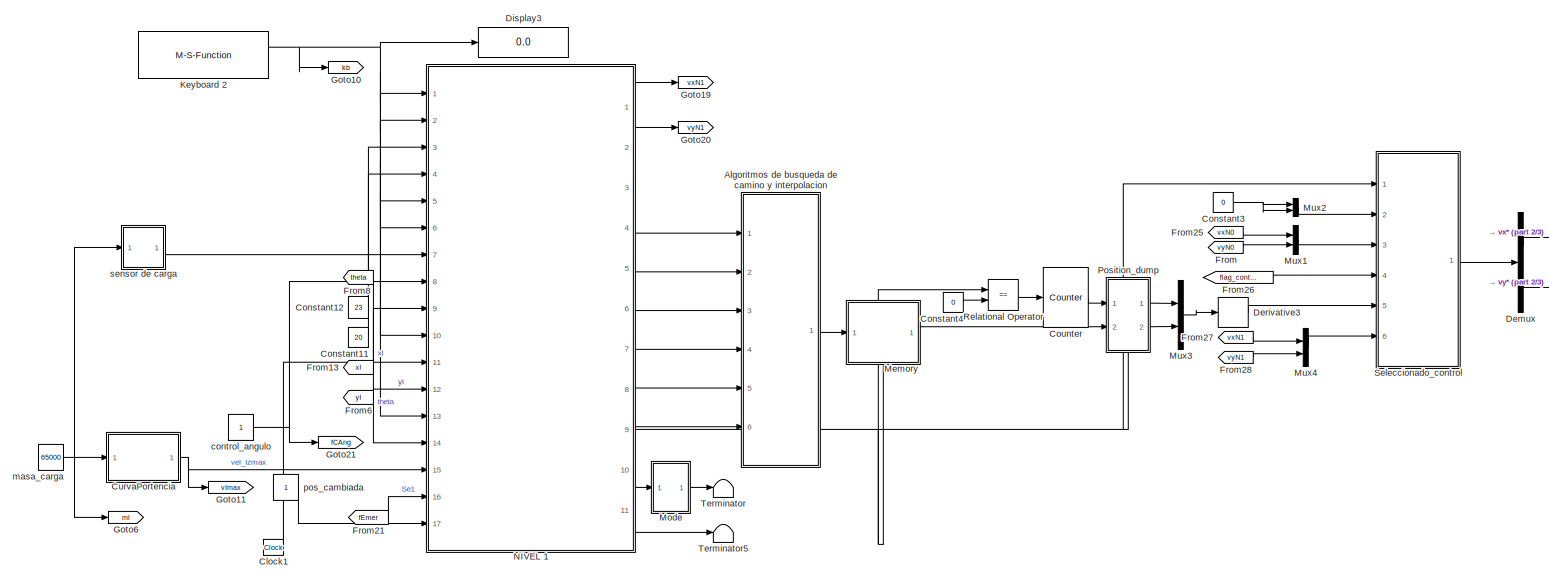
[diagram: root canvas - part 1/3, top left region]
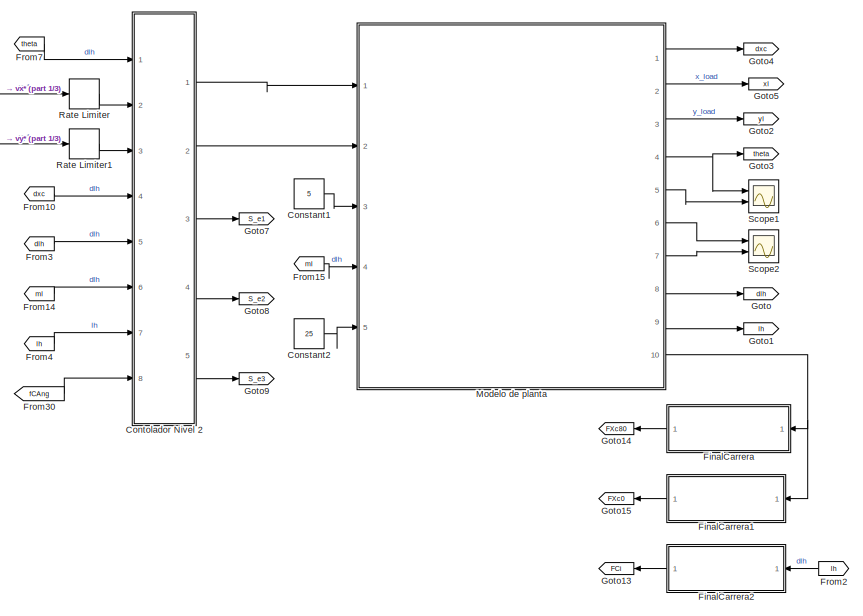
[diagram: root canvas - part 2/3, middle right region]
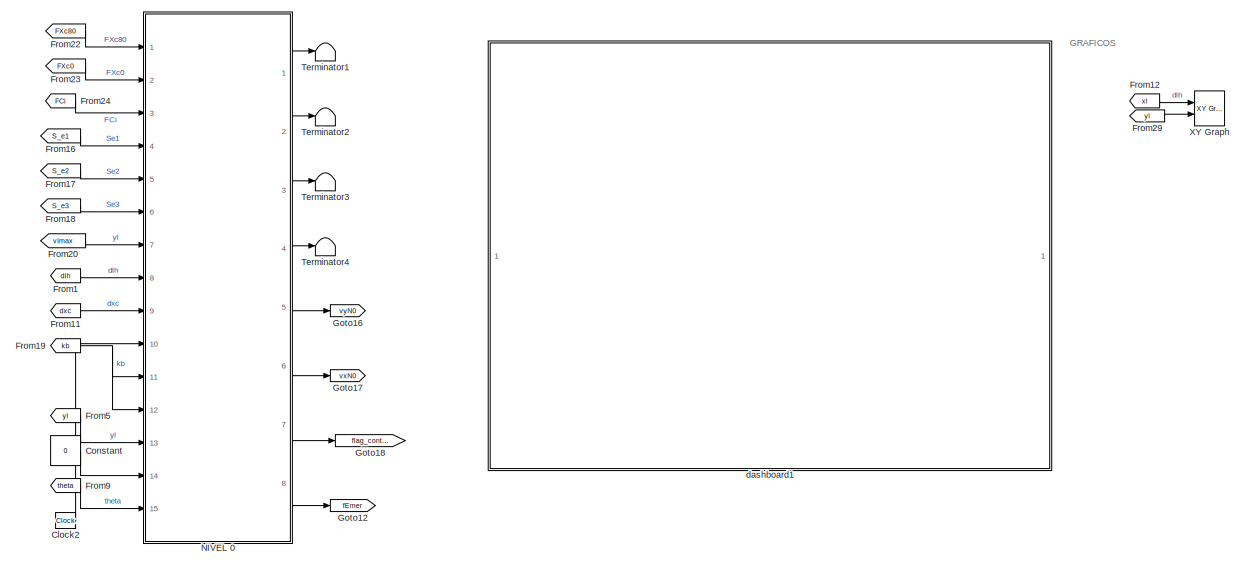
[diagram: root canvas - part 3/3, bottom center region]
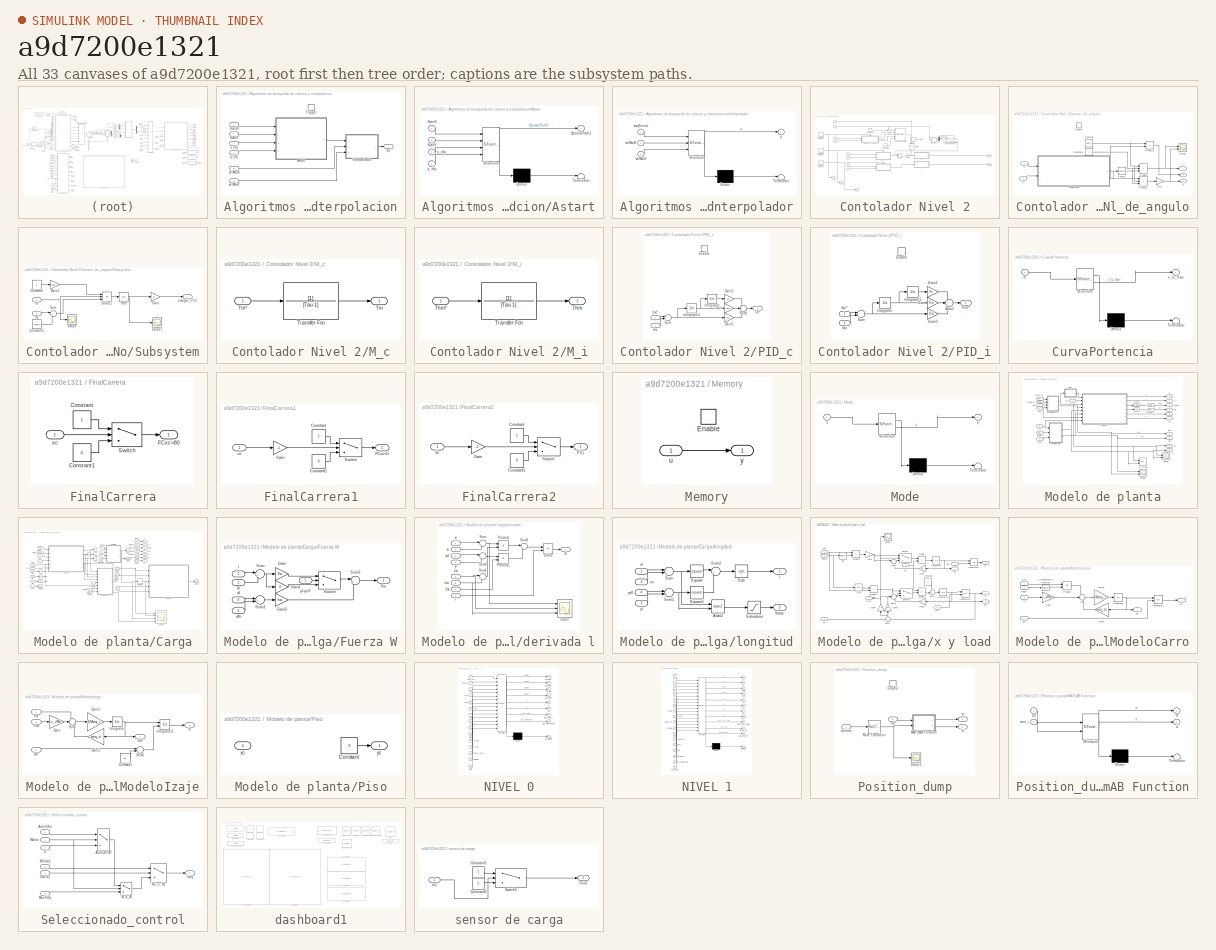
[diagram: thumbnail index - all 33 canvases of the model, root first then tree order]
MODEL slx_a9d7200e1321
KIND model
CONFIG AbsTol = auto
CONFIG EnableMultiTasking = off
CONFIG FixedStep = 1e-2
CONFIG MaxStep = 1e-4
CONFIG MinStep = auto
CONFIG RelTol = 1e-3
CONFIG SampleTimeConstraint = Unconstrained
CONFIG SolverName = FixedStepAuto
CONFIG StartTime = 0.0
CONFIG StopTime = inf
WORKSPACE source: mxarray member
WORKSPACE sensor_carga: Simulink.Parameter (value not decoded)
BLOCK [SubSystem] Algoritmos de busqueda de camino y interpolacion
  Ports = [6, 1, 0, 1]
  RequestExecContextInheritance = off
BLOCK [SubSystem] Algoritmos de busqueda de camino y interpolacion/Astart
  ErrorFcn = Stateflow.Translate.translate
  PermitHierarchicalResolution = ExplicitOnly
  Ports = [4, 1]
  RequestExecContextInheritance = off
  SFBlockType = MATLAB Function
  TreatAsAtomicUnit = on
BLOCK [Demux] Algoritmos de busqueda de camino y interpolacion/Astart/ Demux 
  Outputs = 1
  Ports = [1, 1]
BLOCK [S-Function] Algoritmos de busqueda de camino y interpolacion/Astart/ SFunction 
  EnableBusSupport = on
  FunctionName = sf_sfun
  PortCounts = [4 2]
  Ports = [4, 2]
  SFcnIsStateOwnerBlock = off
  SFunctionDeploymentMode = off
  Tag = Stateflow S-Function 3
BLOCK [Terminator] Algoritmos de busqueda de camino y interpolacion/Astart/ Terminator 
BLOCK [Outport] Algoritmos de busqueda de camino y interpolacion/Astart/OptimalPath2
BLOCK [Inport] Algoritmos de busqueda de camino y interpolacion/Astart/StartX
BLOCK [Inport] Algoritmos de busqueda de camino y interpolacion/Astart/StartY
  Port = 2
BLOCK [Inport] Algoritmos de busqueda de camino y interpolacion/Astart/x_obj
  Port = 3
BLOCK [Inport] Algoritmos de busqueda de camino y interpolacion/Astart/y_obj
  Port = 4
BLOCK [SubSystem] Algoritmos de busqueda de camino y interpolacion/Interpolador
  ErrorFcn = Stateflow.Translate.translate
  PermitHierarchicalResolution = ExplicitOnly
  Ports = [3, 1]
  RequestExecContextInheritance = off
  SFBlockType = MATLAB Function
  TreatAsAtomicUnit = on
BLOCK [Demux] Algoritmos de busqueda de camino y interpolacion/Interpolador/ Demux 
  Outputs = 1
  Ports = [1, 1]
BLOCK [S-Function] Algoritmos de busqueda de camino y interpolacion/Interpolador/ SFunction 
  EnableBusSupport = on
  FunctionName = sf_sfun
  PortCounts = [3 2]
  Ports = [3, 2]
  SFcnIsStateOwnerBlock = off
  SFunctionDeploymentMode = off
  Tag = Stateflow S-Function 7
BLOCK [Terminator] Algoritmos de busqueda de camino y interpolacion/Interpolador/ Terminator 
BLOCK [Outport] Algoritmos de busqueda de camino y interpolacion/Interpolador/q
BLOCK [Inport] Algoritmos de busqueda de camino y interpolacion/Interpolador/velMaxX
  Port = 2
BLOCK [Inport] Algoritmos de busqueda de camino y interpolacion/Interpolador/velMaxY
  Port = 3
BLOCK [Inport] Algoritmos de busqueda de camino y interpolacion/Interpolador/wayPoints
BLOCK [Inport] Algoritmos de busqueda de camino y interpolacion/StartX
BLOCK [Inport] Algoritmos de busqueda de camino y interpolacion/StartY
  Port = 2
BLOCK [TriggerPort] Algoritmos de busqueda de camino y interpolacion/Trigger
  PortDimensions = 1
  Ports = []
  StatesWhenEnabling = held
  VariantControl = Variant
BLOCK [Outport] Algoritmos de busqueda de camino y interpolacion/qd
BLOCK [Inport] Algoritmos de busqueda de camino y interpolacion/velMaxX
  Port = 5
BLOCK [Inport] Algoritmos de busqueda de camino y interpolacion/velMaxY
  Port = 6
BLOCK [Inport] Algoritmos de busqueda de camino y interpolacion/x_obj
  Port = 3
BLOCK [Inport] Algoritmos de busqueda de camino y interpolacion/y_obj
  Port = 4
BLOCK [Clock] Clock1
BLOCK [Clock] Clock2
BLOCK [Constant] Constant
  Value = 0
BLOCK [Constant] Constant1
  Value = 5
BLOCK [Constant] Constant11
  Value = 20
BLOCK [Constant] Constant12
  Value = 23
BLOCK [Constant] Constant2
  Value = 25
BLOCK [Constant] Constant3
  Value = 0
BLOCK [Constant] Constant4
  Value = 0
BLOCK [SubSystem] Contolador Nivel 2
  Ports = [8, 5]
  RequestExecContextInheritance = off
BLOCK [Constant] Contolador Nivel 2/Constant1
  NameLocation = left
  Value = 0
BLOCK [Constant] Contolador Nivel 2/Constant3
  Value = 100
BLOCK [Constant] Contolador Nivel 2/Constant4
  Value = 0
BLOCK [SubSystem] Contolador Nivel 2/Control_de_angulo
  Ports = [2, 3, 1]
  RequestExecContextInheritance = off
BLOCK [Constant] Contolador Nivel 2/Control_de_angulo/Constant
  Value = Meq_c
BLOCK [Constant] Contolador Nivel 2/Control_de_angulo/Constant1
  Value = 3
BLOCK [Outport] Contolador Nivel 2/Control_de_angulo/D
  NameLocation = right
  Port = 3
BLOCK [EnablePort] Contolador Nivel 2/Control_de_angulo/Enable
  Ports = []
BLOCK [Gain] Contolador Nivel 2/Control_de_angulo/Gain
  Gain = 1.7
BLOCK [Outport] Contolador Nivel 2/Control_de_angulo/I
  NameLocation = right
  Port = 2
BLOCK [Outport] Contolador Nivel 2/Control_de_angulo/P
  NameLocation = right
BLOCK [Product] Contolador Nivel 2/Control_de_angulo/Product
  Inputs = 3
  Ports = [3, 1]
BLOCK [Product] Contolador Nivel 2/Control_de_angulo/Product1
  Inputs = 3
  Ports = [3, 1]
BLOCK [Product] Contolador Nivel 2/Control_de_angulo/Product2
  Ports = [2, 1]
BLOCK [Scope] Contolador Nivel 2/Control_de_angulo/Scope1
  Floating = off
  NumInputPorts = 2
  Ports = [2]
  ScopeSpecificationString = Simulink.scopes.TimeScopeBlockCfg('CurrentConfiguration', extmgr.ConfigurationSet(extmgr.Configuration('Core','General UI',true),extmgr.Configuration('Core','Source UI',true),extmgr.Configuration('Sources','WiredSimulink',true,'DataLoggingVariableName','ScopeData3'),extmgr.Configuration('Visuals','Time Domain',true,'SerializedDisplays',{struct('MinYLimReal','521203.7929','MaxYLimReal','1562950.126...<+2233ch>
BLOCK [Math] Contolador Nivel 2/Control_de_angulo/Square
  Operator = square
  Ports = [1, 1]
BLOCK [SubSystem] Contolador Nivel 2/Control_de_angulo/Subsystem
  Ports = [2, 1]
  RequestExecContextInheritance = off
BLOCK [Constant] Contolador Nivel 2/Control_de_angulo/Subsystem/Constant
  Value = g
BLOCK [Constant] Contolador Nivel 2/Control_de_angulo/Subsystem/Constant1
  Value = Meq_c
BLOCK [Product] Contolador Nivel 2/Control_de_angulo/Subsystem/Divide1
  Inputs = *//
  Ports = [3, 1]
BLOCK [Gain] Contolador Nivel 2/Control_de_angulo/Subsystem/Gain
  Gain = 10
BLOCK [Gain] Contolador Nivel 2/Control_de_angulo/Subsystem/Gain1
  Gain = Meq_c
BLOCK [Scope] Contolador Nivel 2/Control_de_angulo/Subsystem/Scope
  Floating = off
  NumInputPorts = 1
  Ports = [1]
  ScopeSpecificationString = Simulink.scopes.TimeScopeBlockCfg('CurrentConfiguration', extmgr.ConfigurationSet(extmgr.Configuration('Core','General UI',true),extmgr.Configuration('Core','Source UI',true),extmgr.Configuration('Sources','WiredSimulink',true,'DataLoggingVariableName','ScopeData1'),extmgr.Configuration('Visuals','Time Domain',true,'SerializedDisplays',{struct('MinYLimReal','22.50919','MaxYLimReal','67.49901','YLa...<+1386ch>
BLOCK [Scope] Contolador Nivel 2/Control_de_angulo/Subsystem/Scope1
  Floating = off
  NumInputPorts = 1
  Ports = [1]
  ScopeSpecificationString = Simulink.scopes.TimeScopeBlockCfg('CurrentConfiguration', extmgr.ConfigurationSet(extmgr.Configuration('Core','General UI',true),extmgr.Configuration('Core','Source UI',true),extmgr.Configuration('Sources','WiredSimulink',true,'DataLoggingVariableName','ScopeData3'),extmgr.Configuration('Visuals','Time Domain',true,'SerializedDisplays',{struct('MinYLimReal','0.27567','MaxYLimReal','0.33121','YLabe...<+1413ch>
BLOCK [Sqrt] Contolador Nivel 2/Control_de_angulo/Subsystem/Sqrt
BLOCK [Sum] Contolador Nivel 2/Control_de_angulo/Subsystem/Sum
  Inputs = |++
  Ports = [2, 1]
BLOCK [Inport] Contolador Nivel 2/Control_de_angulo/Subsystem/lh
  NameLocation = left
BLOCK [Inport] Contolador Nivel 2/Control_de_angulo/Subsystem/ml
  Port = 2
BLOCK [Outport] Contolador Nivel 2/Control_de_angulo/Subsystem/omega_n*10
BLOCK [Inport] Contolador Nivel 2/Control_de_angulo/lh
  NameLocation = left
BLOCK [Inport] Contolador Nivel 2/Control_de_angulo/ml
  Port = 2
BLOCK [Derivative] Contolador Nivel 2/Derivative2
BLOCK [Reference] Contolador Nivel 2/Fuzzy Logic Controller with Ruleviewer  REF=fuzblock/Fuzzy Logic   (lib defined in mdl_858b3b3e7478)
Controller 
with Ruleviewer
  Ports = [1, 1]
  SourceBlock = fuzblock/Fuzzy Logic \nController \nwith Ruleviewer
  SourceProductBaseCode = FL
  SourceType = Fuzzy Inference System
BLOCK [SubSystem] Contolador Nivel 2/M_c
  Ports = [1, 1]
  RequestExecContextInheritance = off
BLOCK [Outport] Contolador Nivel 2/M_c/Tm
BLOCK [Inport] Contolador Nivel 2/M_c/Tm*
BLOCK [TransferFcn] Contolador Nivel 2/M_c/Transfer Fcn
  Denominator = [Tau 1]
BLOCK [SubSystem] Contolador Nivel 2/M_i
  Ports = [1, 1]
  RequestExecContextInheritance = off
BLOCK [Outport] Contolador Nivel 2/M_i/Thm
BLOCK [Inport] Contolador Nivel 2/M_i/Thm*
BLOCK [TransferFcn] Contolador Nivel 2/M_i/Transfer Fcn
  Denominator = [Tau 1]
BLOCK [Mux] Contolador Nivel 2/Mux
  DisplayOption = bar
  Inputs = 2
  Ports = [2, 1]
BLOCK [SubSystem] Contolador Nivel 2/PID_c
  Ports = [2, 1, 1]
  RequestExecContextInheritance = off
BLOCK [EnablePort] Contolador Nivel 2/PID_c/Enable
  Ports = []
BLOCK [Gain] Contolador Nivel 2/PID_c/Gain
  Gain = Kcp
BLOCK [Gain] Contolador Nivel 2/PID_c/Gain1
  Gain = Kci
BLOCK [Gain] Contolador Nivel 2/PID_c/Gain2
  Gain = Kcd
BLOCK [Integrator] Contolador Nivel 2/PID_c/Integrator
  Ports = [1, 1]
BLOCK [Integrator] Contolador Nivel 2/PID_c/Integrator1
  Ports = [1, 1]
BLOCK [Sum] Contolador Nivel 2/PID_c/Sum
  Inputs = |+-
  Ports = [2, 1]
BLOCK [Sum] Contolador Nivel 2/PID_c/Sum1
  Inputs = +++
  Ports = [3, 1]
BLOCK [Outport] Contolador Nivel 2/PID_c/Tm*'
BLOCK [Inport] Contolador Nivel 2/PID_c/dxc
  NameLocation = left
BLOCK [Inport] Contolador Nivel 2/PID_c/dxc*
  NameLocation = left
  Port = 2
BLOCK [SubSystem] Contolador Nivel 2/PID_i
  Ports = [2, 1, 1]
  RequestExecContextInheritance = off
BLOCK [EnablePort] Contolador Nivel 2/PID_i/Enable
  Ports = []
BLOCK [Gain] Contolador Nivel 2/PID_i/Gain
  Gain = Kip
BLOCK [Gain] Contolador Nivel 2/PID_i/Gain1
  Gain = Kii
BLOCK [Gain] Contolador Nivel 2/PID_i/Gain2
  Gain = Kid
BLOCK [Integrator] Contolador Nivel 2/PID_i/Integrator
  Ports = [1, 1]
BLOCK [Integrator] Contolador Nivel 2/PID_i/Integrator1
  Ports = [1, 1]
BLOCK [Sum] Contolador Nivel 2/PID_i/Sum
  Inputs = |+-
  Ports = [2, 1]
BLOCK [Sum] Contolador Nivel 2/PID_i/Sum1
  Inputs = +++
  Ports = [3, 1]
BLOCK [Outport] Contolador Nivel 2/PID_i/Thm*'
BLOCK [Inport] Contolador Nivel 2/PID_i/dyi
  NameLocation = left
  Port = 2
BLOCK [Inport] Contolador Nivel 2/PID_i/dyi*
  NameLocation = left
BLOCK [Product] Contolador Nivel 2/Product
  Ports = [2, 1]
BLOCK [RateTransition] Contolador Nivel 2/Rate Transition
  OutPortSampleTime = 0.01
BLOCK [Outport] Contolador Nivel 2/S_e1
  Port = 3
BLOCK [Outport] Contolador Nivel 2/S_e2
  Port = 4
BLOCK [Outport] Contolador Nivel 2/S_e3
  Port = 5
BLOCK [Sum] Contolador Nivel 2/Sum
  Inputs = -+|
  Ports = [2, 1]
BLOCK [Sum] Contolador Nivel 2/Sum1
  Inputs = ++|
  Ports = [2, 1]
BLOCK [Constant] Contolador Nivel 2/Suministro_electrico1
BLOCK [Constant] Contolador Nivel 2/Suministro_electrico2
  NameLocation = top
BLOCK [Constant] Contolador Nivel 2/Suministro_electrico3
BLOCK [Switch] Contolador Nivel 2/Switch
  Criteria = u2 > Threshold
  InputSameDT = off
  NameLocation = left
  SaturateOnIntegerOverflow = off
BLOCK [Outport] Contolador Nivel 2/Thm
  Port = 2
BLOCK [Outport] Contolador Nivel 2/Tm
BLOCK [Reference] Contolador Nivel 2/Varying PID Controller  REF=pid_lib/PID Controller
  Ports = [5, 1]
  SourceBlock = pid_lib/PID Controller
  SourceProductBaseCode = SL
  SourceType = PID 1dof
BLOCK [Inport] Contolador Nivel 2/ang
  NameLocation = top
BLOCK [Inport] Contolador Nivel 2/dxc
  Port = 4
BLOCK [Inport] Contolador Nivel 2/dxc*
  Port = 2
BLOCK [Inport] Contolador Nivel 2/dyi
  Port = 5
BLOCK [Inport] Contolador Nivel 2/dyi*
  Port = 3
BLOCK [Inport] Contolador Nivel 2/fCAng
  Port = 8
BLOCK [Inport] Contolador Nivel 2/lh
  Port = 7
BLOCK [Inport] Contolador Nivel 2/ml
  Port = 6
BLOCK [Reference] Counter  REF=dspswit3/Counter
  Ports = [1, 1]
  SourceBlock = dspswit3/Counter
  SourceProductBaseCode = DS
  SourceType = Counter
BLOCK [SubSystem] CurvaPortencia
  ErrorFcn = Stateflow.Translate.translate
  PermitHierarchicalResolution = ExplicitOnly
  Ports = [1, 1]
  RequestExecContextInheritance = off
  SFBlockType = MATLAB Function
  TreatAsAtomicUnit = on
BLOCK [Demux] CurvaPortencia/ Demux 
  Outputs = 1
  Ports = [1, 1]
BLOCK [S-Function] CurvaPortencia/ SFunction 
  EnableBusSupport = on
  FunctionName = sf_sfun
  PortCounts = [1 2]
  Ports = [1, 2]
  SFcnIsStateOwnerBlock = off
  SFunctionDeploymentMode = off
  Tag = Stateflow S-Function 2
BLOCK [Terminator] CurvaPortencia/ Terminator 
BLOCK [Inport] CurvaPortencia/m
BLOCK [Outport] CurvaPortencia/v_Iz_max
BLOCK [Demux] Demux
  Outputs = 2
  Ports = [1, 2]
BLOCK [Derivative] Derivative3
BLOCK [Display] Display3
  Decimation = 1
  Ports = [1]
BLOCK [SubSystem] FinalCarrera
  NameLocation = top
  Ports = [1, 1]
  RequestExecContextInheritance = off
BLOCK [Constant] FinalCarrera/Constant
BLOCK [Constant] FinalCarrera/Constant1
  Value = 0
BLOCK [Outport] FinalCarrera/FCxc>80
BLOCK [Switch] FinalCarrera/Switch
  Criteria = u2 > Threshold
  InputSameDT = off
  SaturateOnIntegerOverflow = off
  Threshold = 80
BLOCK [Inport] FinalCarrera/xc
BLOCK [SubSystem] FinalCarrera1
  NameLocation = top
  Ports = [1, 1]
  RequestExecContextInheritance = off
BLOCK [Constant] FinalCarrera1/Constant
BLOCK [Constant] FinalCarrera1/Constant1
  Value = 0
BLOCK [Outport] FinalCarrera1/FCxc<0
BLOCK [Gain] FinalCarrera1/Gain
  Gain = -1
BLOCK [Switch] FinalCarrera1/Switch
  Criteria = u2 > Threshold
  InputSameDT = off
  SaturateOnIntegerOverflow = off
BLOCK [Inport] FinalCarrera1/xc
BLOCK [SubSystem] FinalCarrera2
  NameLocation = top
  Ports = [1, 1]
  RequestExecContextInheritance = off
BLOCK [Constant] FinalCarrera2/Constant
BLOCK [Constant] FinalCarrera2/Constant1
  Value = 0
BLOCK [Outport] FinalCarrera2/FCi
BLOCK [Gain] FinalCarrera2/Gain
  Gain = -1
BLOCK [Switch] FinalCarrera2/Switch
  InputSameDT = off
  SaturateOnIntegerOverflow = off
BLOCK [Inport] FinalCarrera2/lh
BLOCK [From] From
  GotoTag = vyN0
BLOCK [From] From1
  GotoTag = dlh
BLOCK [From] From10
  GotoTag = dxc
BLOCK [From] From11
  GotoTag = dxc
BLOCK [From] From12
  GotoTag = xl
BLOCK [From] From13
  GotoTag = xl
BLOCK [From] From14
  GotoTag = ml
BLOCK [From] From15
  GotoTag = ml
BLOCK [From] From16
  GotoTag = S_e1
BLOCK [From] From17
  GotoTag = S_e2
BLOCK [From] From18
  GotoTag = S_e3
BLOCK [From] From19
  GotoTag = kb
BLOCK [From] From2
  GotoTag = lh
  NameLocation = top
BLOCK [From] From20
  GotoTag = vImax
BLOCK [From] From21
  GotoTag = fEmer
BLOCK [From] From22
  GotoTag = FXc80
BLOCK [From] From23
  GotoTag = FXc0
BLOCK [From] From24
  GotoTag = FCi
BLOCK [From] From25
  GotoTag = vxN0
BLOCK [From] From26
  GotoTag = flag_control
BLOCK [From] From27
  GotoTag = vxN1
BLOCK [From] From28
  GotoTag = vyN1
BLOCK [From] From29
  GotoTag = yl
BLOCK [From] From3
  GotoTag = dlh
BLOCK [From] From30
  GotoTag = fCAng
BLOCK [From] From4
  GotoTag = lh
BLOCK [From] From5
  GotoTag = yl
BLOCK [From] From6
  GotoTag = yl
BLOCK [From] From7
  GotoTag = theta
BLOCK [From] From8
  GotoTag = theta
BLOCK [From] From9
  GotoTag = theta
BLOCK [Goto] Goto
  GotoTag = dlh
BLOCK [Goto] Goto1
  GotoTag = lh
BLOCK [Goto] Goto10
  GotoTag = kb
BLOCK [Goto] Goto11
  GotoTag = vImax
BLOCK [Goto] Goto12
  GotoTag = fEmer
BLOCK [Goto] Goto13
  GotoTag = FCi
  NameLocation = top
BLOCK [Goto] Goto14
  GotoTag = FXc80
  NameLocation = top
BLOCK [Goto] Goto15
  GotoTag = FXc0
  NameLocation = top
BLOCK [Goto] Goto16
  GotoTag = vyN0
BLOCK [Goto] Goto17
  GotoTag = vxN0
BLOCK [Goto] Goto18
  GotoTag = flag_control
BLOCK [Goto] Goto19
  GotoTag = vxN1
BLOCK [Goto] Goto2
  GotoTag = yl
BLOCK [Goto] Goto20
  GotoTag = vyN1
BLOCK [Goto] Goto21
  GotoTag = fCAng
BLOCK [Goto] Goto3
  GotoTag = theta
BLOCK [Goto] Goto4
  GotoTag = dxc
BLOCK [Goto] Goto5
  GotoTag = xl
BLOCK [Goto] Goto6
  GotoTag = ml
BLOCK [Goto] Goto7
  GotoTag = S_e1
BLOCK [Goto] Goto8
  GotoTag = S_e2
BLOCK [Goto] Goto9
  GotoTag = S_e3
BLOCK [M-S-Function] Keyboard 2
  FunctionName = sfun_keyboard_input_v1_2b
  Ports = [0, 2]
BLOCK [SubSystem] Memory
  Ports = [1, 1, 1]
  RequestExecContextInheritance = off
BLOCK [EnablePort] Memory/Enable
  Ports = []
BLOCK [Inport] Memory/u
BLOCK [Outport] Memory/y
BLOCK [SubSystem] Mode
  ErrorFcn = Stateflow.Translate.translate
  PermitHierarchicalResolution = ExplicitOnly
  Ports = [1, 1]
  RequestExecContextInheritance = off
  SFBlockType = MATLAB Function
  TreatAsAtomicUnit = on
BLOCK [Demux] Mode/ Demux 
  Outputs = 1
  Ports = [1, 1]
BLOCK [S-Function] Mode/ SFunction 
  EnableBusSupport = on
  FunctionName = sf_sfun
  PortCounts = [1 2]
  Ports = [1, 2]
  SFcnIsStateOwnerBlock = off
  SFunctionDeploymentMode = off
  Tag = Stateflow S-Function 4
BLOCK [Terminator] Mode/ Terminator 
BLOCK [Inport] Mode/u
BLOCK [Outport] Mode/y
BLOCK [SubSystem] Modelo de planta
  Ports = [5, 10]
  RequestExecContextInheritance = off
BLOCK [SubSystem] Modelo de planta/Carga
  Ports = [8, 7]
  RequestExecContextInheritance = off
BLOCK [Constant] Modelo de planta/Carga/Constant
  Value = 65
BLOCK [Derivative] Modelo de planta/Carga/Derivative
BLOCK [From] Modelo de planta/Carga/From
  GotoTag = Fw
BLOCK [From] Modelo de planta/Carga/From1
  GotoTag = theta
BLOCK [From] Modelo de planta/Carga/From10
  GotoTag = l
BLOCK [From] Modelo de planta/Carga/From11
  GotoTag = xl
BLOCK [From] Modelo de planta/Carga/From12
  GotoTag = yl
BLOCK [From] Modelo de planta/Carga/From13
  GotoTag = theta
BLOCK [From] Modelo de planta/Carga/From14
  GotoTag = Fw
BLOCK [From] Modelo de planta/Carga/From15
  GotoTag = xl
BLOCK [From] Modelo de planta/Carga/From16
  GotoTag = yl
BLOCK [From] Modelo de planta/Carga/From17
  GotoTag = dl
BLOCK [From] Modelo de planta/Carga/From18
  GotoTag = l
BLOCK [From] Modelo de planta/Carga/From2
  GotoTag = dxl
BLOCK [From] Modelo de planta/Carga/From3
  GotoTag = xc
BLOCK [From] Modelo de planta/Carga/From4
  GotoTag = dlh
BLOCK [From] Modelo de planta/Carga/From5
  GotoTag = lh
BLOCK [From] Modelo de planta/Carga/From6
  GotoTag = xc
BLOCK [From] Modelo de planta/Carga/From8
  GotoTag = dxc
BLOCK [From] Modelo de planta/Carga/From9
  GotoTag = l
BLOCK [SubSystem] Modelo de planta/Carga/Fuerza W
  Ports = [5, 1]
  RequestExecContextInheritance = off
BLOCK [Outport] Modelo de planta/Carga/Fuerza W/Fw
  NameLocation = right
BLOCK [Gain] Modelo de planta/Carga/Fuerza W/Gain
  Gain = Kw
BLOCK [Gain] Modelo de planta/Carga/Fuerza W/Gain1
  Gain = 0
BLOCK [Gain] Modelo de planta/Carga/Fuerza W/Gain2
  Gain = bw
BLOCK [Sum] Modelo de planta/Carga/Fuerza W/Sum
  Inputs = |+-
  Ports = [2, 1]
BLOCK [Sum] Modelo de planta/Carga/Fuerza W/Sum1
  Inputs = |+-
  Ports = [2, 1]
BLOCK [Sum] Modelo de planta/Carga/Fuerza W/Sum2
  Inputs = |++
  Ports = [2, 1]
BLOCK [Switch] Modelo de planta/Carga/Fuerza W/Switch
  Criteria = u2 > Threshold
  InputSameDT = off
  SaturateOnIntegerOverflow = off
BLOCK [Inport] Modelo de planta/Carga/Fuerza W/dl
  NameLocation = left
  Port = 3
BLOCK [Inport] Modelo de planta/Carga/Fuerza W/dlh
  NameLocation = left
  Port = 4
BLOCK [Inport] Modelo de planta/Carga/Fuerza W/l
  NameLocation = left
BLOCK [Inport] Modelo de planta/Carga/Fuerza W/lh
  NameLocation = left
  Port = 2
BLOCK [Inport] Modelo de planta/Carga/Fuerza W/yl-yc0
  NameLocation = left
  Port = 5
BLOCK [Outport] Modelo de planta/Carga/Fw
  NameLocation = right
  Port = 4
BLOCK [Goto] Modelo de planta/Carga/Goto
  GotoTag = theta
BLOCK [Goto] Modelo de planta/Carga/Goto1
  GotoTag = Fw
BLOCK [Goto] Modelo de planta/Carga/Goto10
  GotoTag = dl
  NameLocation = right
BLOCK [Goto] Modelo de planta/Carga/Goto2
  GotoTag = dxl
BLOCK [Goto] Modelo de planta/Carga/Goto3
  GotoTag = xc
BLOCK [Goto] Modelo de planta/Carga/Goto4
  GotoTag = lh
BLOCK [Goto] Modelo de planta/Carga/Goto5
  GotoTag = dlh
BLOCK [Goto] Modelo de planta/Carga/Goto6
  GotoTag = dxc
BLOCK [Goto] Modelo de planta/Carga/Goto7
  GotoTag = l
BLOCK [Goto] Modelo de planta/Carga/Goto8
  GotoTag = xl
BLOCK [Goto] Modelo de planta/Carga/Goto9
  GotoTag = yl
BLOCK [Scope] Modelo de planta/Carga/Scope
  Floating = off
  NumInputPorts = 4
  Ports = [4]
  ScopeSpecificationString = Simulink.scopes.TimeScopeBlockCfg('CurrentConfiguration', extmgr.ConfigurationSet(extmgr.Configuration('Core','General UI',true),extmgr.Configuration('Core','Source UI',true),extmgr.Configuration('Sources','WiredSimulink',true,'DataLoggingVariableName','ScopeData4'),extmgr.Configuration('Visuals','Time Domain',true,'SerializedDisplays',{struct('MinYLimReal','22.8328','MaxYLimReal','67.8582','YLabe...<+3406ch>
BLOCK [SubSystem] Modelo de planta/Carga/derivada l
  NameLocation = top
  Ports = [8, 1]
  RequestExecContextInheritance = off
BLOCK [Product] Modelo de planta/Carga/derivada l/Divide
  Inputs = */
  Ports = [2, 1]
BLOCK [Product] Modelo de planta/Carga/derivada l/Product
  Ports = [2, 1]
BLOCK [Product] Modelo de planta/Carga/derivada l/Product1
  Ports = [2, 1]
BLOCK [Scope] Modelo de planta/Carga/derivada l/Scope
  Floating = off
  NumInputPorts = 3
  Ports = [3]
  ScopeSpecificationString = Simulink.scopes.TimeScopeBlockCfg('CurrentConfiguration', extmgr.ConfigurationSet(extmgr.Configuration('Core','General UI',true),extmgr.Configuration('Core','Source UI',true),extmgr.Configuration('Sources','WiredSimulink',true,'DataLoggingVariableName','ScopeData5'),extmgr.Configuration('Visuals','Time Domain',true,'SerializedDisplays',{struct('MinYLimReal','-1.62745','MaxYLimReal','8.64469','YLab...<+2760ch>
BLOCK [Sum] Modelo de planta/Carga/derivada l/Sum
  Inputs = |+-
  Ports = [2, 1]
BLOCK [Sum] Modelo de planta/Carga/derivada l/Sum1
  Inputs = |+-
  Ports = [2, 1]
BLOCK [Sum] Modelo de planta/Carga/derivada l/Sum2
  Inputs = |+-
  Ports = [2, 1]
BLOCK [Sum] Modelo de planta/Carga/derivada l/Sum3
  Inputs = |+-
  Ports = [2, 1]
BLOCK [Outport] Modelo de planta/Carga/derivada l/dl
BLOCK [Inport] Modelo de planta/Carga/derivada l/dxc
  NameLocation = left
  Port = 8
BLOCK [Inport] Modelo de planta/Carga/derivada l/dxl
  NameLocation = left
  Port = 2
BLOCK [Inport] Modelo de planta/Carga/derivada l/dyl
  NameLocation = left
  Port = 4
BLOCK [Inport] Modelo de planta/Carga/derivada l/l
  NameLocation = left
  Port = 5
BLOCK [Inport] Modelo de planta/Carga/derivada l/xc
  NameLocation = left
  Port = 7
BLOCK [Inport] Modelo de planta/Carga/derivada l/xl
  NameLocation = left
BLOCK [Inport] Modelo de planta/Carga/derivada l/yl
  NameLocation = left
  Port = 3
BLOCK [Inport] Modelo de planta/Carga/derivada l/yt0
  NameLocation = left
  Port = 6
BLOCK [Outport] Modelo de planta/Carga/dl
  NameLocation = right
  Port = 6
BLOCK [Inport] Modelo de planta/Carga/dlh
  NameLocation = left
  Port = 6
BLOCK [Inport] Modelo de planta/Carga/dxc
  NameLocation = left
  Port = 4
BLOCK [Outport] Modelo de planta/Carga/dxl
  NameLocation = right
  Port = 7
BLOCK [Outport] Modelo de planta/Carga/l
  NameLocation = right
  Port = 5
BLOCK [Inport] Modelo de planta/Carga/lh
  NameLocation = left
  Port = 5
BLOCK [SubSystem] Modelo de planta/Carga/longitud
  NameLocation = top
  Ports = [4, 2]
  RequestExecContextInheritance = off
BLOCK [Trigonometry] Modelo de planta/Carga/longitud/Atan2
  Operator = atan2
  Ports = [2, 1]
BLOCK [Saturate] Modelo de planta/Carga/longitud/Saturation
  LowerLimit = -pi/2
  UpperLimit = pi/2
BLOCK [Sqrt] Modelo de planta/Carga/longitud/Sqrt
  OutputSignalType = real
BLOCK [Math] Modelo de planta/Carga/longitud/Square
  Operator = square
  OutputSignalType = real
  Ports = [1, 1]
BLOCK [Math] Modelo de planta/Carga/longitud/Square1
  Operator = square
  OutputSignalType = real
  Ports = [1, 1]
BLOCK [Sum] Modelo de planta/Carga/longitud/Sum
  Inputs = |+-
  Ports = [2, 1]
BLOCK [Sum] Modelo de planta/Carga/longitud/Sum1
  Inputs = |+-
  Ports = [2, 1]
BLOCK [Sum] Modelo de planta/Carga/longitud/Sum2
  Inputs = |++
  Ports = [2, 1]
BLOCK [Outport] Modelo de planta/Carga/longitud/l
  NameLocation = right
BLOCK [Outport] Modelo de planta/Carga/longitud/theta
  NameLocation = right
  Port = 2
BLOCK [Inport] Modelo de planta/Carga/longitud/xc
  NameLocation = left
  Port = 3
BLOCK [Inport] Modelo de planta/Carga/longitud/xl
  NameLocation = left
BLOCK [Inport] Modelo de planta/Carga/longitud/yl
  NameLocation = left
  Port = 2
BLOCK [Inport] Modelo de planta/Carga/longitud/yt0
  NameLocation = left
  Port = 4
BLOCK [Inport] Modelo de planta/Carga/ml
  NameLocation = left
  Port = 2
BLOCK [Outport] Modelo de planta/Carga/theta
  NameLocation = right
  Port = 3
BLOCK [SubSystem] Modelo de planta/Carga/x y load
  Ports = [6, 5]
  RequestExecContextInheritance = off
BLOCK [Constant] Modelo de planta/Carga/x y load/Constant
  Value = g
BLOCK [Trigonometry] Modelo de planta/Carga/x y load/Cos
  Operator = cos
  Ports = [1, 1]
BLOCK [Product] Modelo de planta/Carga/x y load/Divide
  Inputs = */
  Ports = [2, 1]
BLOCK [Product] Modelo de planta/Carga/x y load/Divide1
  Inputs = /*
  Ports = [2, 1]
BLOCK [Inport] Modelo de planta/Carga/x y load/Fw
  NameLocation = left
BLOCK [Gain] Modelo de planta/Carga/x y load/Gain
  Gain = bcx
  NameLocation = top
BLOCK [Gain] Modelo de planta/Carga/x y load/Gain2
  Gain = Kcy
  NameLocation = right
BLOCK [Gain] Modelo de planta/Carga/x y load/Gain3
  Gain = bcy
  NameLocation = top
BLOCK [Gain] Modelo de planta/Carga/x y load/Gain4
  Gain = -1
BLOCK [Gain] Modelo de planta/Carga/x y load/Gain5
  Gain = -1
  NameLocation = left
BLOCK [Integrator] Modelo de planta/Carga/x y load/Integrator
  Ports = [1, 1]
  ZeroCross = off
BLOCK [Integrator] Modelo de planta/Carga/x y load/Integrator1
  InitialCondition = 0.01
  InitialConditionSource = external
  Ports = [2, 1]
BLOCK [Integrator] Modelo de planta/Carga/x y load/Integrator2
  Ports = [1, 1]
BLOCK [Integrator] Modelo de planta/Carga/x y load/Integrator3
  InitialCondition = 1
  InitialConditionSource = external
  Ports = [2, 1]
BLOCK [Product] Modelo de planta/Carga/x y load/Product
  Ports = [2, 1]
BLOCK [Product] Modelo de planta/Carga/x y load/Product1
  Ports = [2, 1]
BLOCK [Scope] Modelo de planta/Carga/x y load/Scope
  Floating = off
  NumInputPorts = 1
  Ports = [1]
  ScopeSpecificationString = Simulink.scopes.TimeScopeBlockCfg('CurrentConfiguration', extmgr.ConfigurationSet(extmgr.Configuration('Core','General UI',true),extmgr.Configuration('Core','Source UI',true),extmgr.Configuration('Sources','WiredSimulink',true,'DataLoggingVariableName','ScopeData6'),extmgr.Configuration('Visuals','Time Domain',true,'SerializedDisplays',{struct('MinYLimReal','-3.56994','MaxYLimReal','1.80638','YLab...<+1383ch>
BLOCK [Trigonometry] Modelo de planta/Carga/x y load/Sin
  Ports = [1, 1]
BLOCK [Sum] Modelo de planta/Carga/x y load/Sum
  Inputs = |+-
  Ports = [2, 1]
BLOCK [Sum] Modelo de planta/Carga/x y load/Sum1
  Inputs = -+|
  Ports = [2, 1]
BLOCK [Sum] Modelo de planta/Carga/x y load/Sum2
  Inputs = +-
  NameLocation = right
  Ports = [2, 1]
BLOCK [Sum] Modelo de planta/Carga/x y load/Sum3
  Inputs = ++-
  Ports = [3, 1]
BLOCK [Switch] Modelo de planta/Carga/x y load/Switch
  InputSameDT = off
  SaturateOnIntegerOverflow = off
BLOCK [Switch] Modelo de planta/Carga/x y load/Switch1
  Criteria = u2 > Threshold
  InputSameDT = off
  SaturateOnIntegerOverflow = off
BLOCK [Inport] Modelo de planta/Carga/x y load/Theta
  NameLocation = left
  Port = 2
BLOCK [Outport] Modelo de planta/Carga/x y load/dxl
  NameLocation = right
  Port = 2
BLOCK [Outport] Modelo de planta/Carga/x y load/dyl
  NameLocation = right
  Port = 4
BLOCK [Inport] Modelo de planta/Carga/x y load/ml
  NameLocation = left
  Port = 3
BLOCK [Inport] Modelo de planta/Carga/x y load/xc0
  NameLocation = left
  Port = 4
BLOCK [Outport] Modelo de planta/Carga/x y load/xl
  NameLocation = right
BLOCK [Inport] Modelo de planta/Carga/x y load/yc0
  NameLocation = left
  Port = 6
BLOCK [Outport] Modelo de planta/Carga/x y load/yl
  NameLocation = right
  Port = 3
BLOCK [Outport] Modelo de planta/Carga/x y load/yl-yc0
  NameLocation = left
  Port = 5
BLOCK [Inport] Modelo de planta/Carga/x y load/yt0
  NameLocation = left
  Port = 5
BLOCK [Inport] Modelo de planta/Carga/xc
  NameLocation = left
  Port = 3
BLOCK [Inport] Modelo de planta/Carga/xc0
  NameLocation = left
  Port = 7
BLOCK [Outport] Modelo de planta/Carga/xl
  NameLocation = right
BLOCK [Inport] Modelo de planta/Carga/yc0
  NameLocation = left
BLOCK [Outport] Modelo de planta/Carga/yl
  NameLocation = right
  Port = 2
BLOCK [Inport] Modelo de planta/Carga/yt0
  NameLocation = left
  Port = 8
BLOCK [From] Modelo de planta/From1
  GotoTag = Fw
BLOCK [From] Modelo de planta/From13
  GotoTag = theta
BLOCK [From] Modelo de planta/From14
  GotoTag = Fw
BLOCK [From] Modelo de planta/From2
  GotoTag = theta
BLOCK [From] Modelo de planta/From3
  GotoTag = Fw
BLOCK [Outport] Modelo de planta/Fw
  NameLocation = right
  Port = 5
BLOCK [Goto] Modelo de planta/Goto
  GotoTag = theta
BLOCK [Goto] Modelo de planta/Goto1
  GotoTag = Fw
BLOCK [SubSystem] Modelo de planta/ModeloCarro
  Ports = [4, 2]
  RequestExecContextInheritance = off
BLOCK [Inport] Modelo de planta/ModeloCarro/Fw
  NameLocation = left
BLOCK [Gain] Modelo de planta/ModeloCarro/Gain
  Gain = i_c/Rw
BLOCK [Gain] Modelo de planta/ModeloCarro/Gain1
  Gain = beq_tc
  NameLocation = top
BLOCK [Gain] Modelo de planta/ModeloCarro/Gain2
  Gain = 1/Meq_c
BLOCK [Integrator] Modelo de planta/ModeloCarro/Integrator
  Ports = [1, 1]
BLOCK [Integrator] Modelo de planta/ModeloCarro/Integrator1
  InitialCondition = 0.01
  InitialConditionSource = external
  Ports = [2, 1]
BLOCK [Product] Modelo de planta/ModeloCarro/Product
  Ports = [2, 1]
BLOCK [Sum] Modelo de planta/ModeloCarro/Sum
  Inputs = ++-
  Ports = [3, 1]
BLOCK [Inport] Modelo de planta/ModeloCarro/Tm
  NameLocation = left
  Port = 3
BLOCK [Trigonometry] Modelo de planta/ModeloCarro/Trigonometric Function
  Ports = [1, 1]
BLOCK [Outport] Modelo de planta/ModeloCarro/dxc
  NameLocation = right
  Port = 2
BLOCK [Inport] Modelo de planta/ModeloCarro/theta
  NameLocation = left
  Port = 2
BLOCK [Outport] Modelo de planta/ModeloCarro/xc
  NameLocation = right
BLOCK [Inport] Modelo de planta/ModeloCarro/xc0
  NameLocation = left
  Port = 4
BLOCK [SubSystem] Modelo de planta/ModeloIzaje
  Ports = [3, 2]
  RequestExecContextInheritance = off
BLOCK [Constant] Modelo de planta/ModeloIzaje/Constant
  Value = 65
BLOCK [Inport] Modelo de planta/ModeloIzaje/Fw
  NameLocation = left
  Port = 2
BLOCK [Gain] Modelo de planta/ModeloIzaje/Gain
  Gain = +i_i/Rd
BLOCK [Gain] Modelo de planta/ModeloIzaje/Gain1
  Gain = beq_ti
  NameLocation = top
BLOCK [Gain] Modelo de planta/ModeloIzaje/Gain2
  Gain = 1/Meq_i
BLOCK [Integrator] Modelo de planta/ModeloIzaje/Integrator
  Ports = [1, 1]
BLOCK [Integrator] Modelo de planta/ModeloIzaje/Integrator1
  InitialCondition = 0.5
  InitialConditionSource = external
  Ports = [2, 1]
BLOCK [Sum] Modelo de planta/ModeloIzaje/Sum
  Inputs = ++-
  Ports = [3, 1]
BLOCK [Sum] Modelo de planta/ModeloIzaje/Sum1
  Inputs = |-+
  Ports = [2, 1]
BLOCK [Inport] Modelo de planta/ModeloIzaje/Thm
  NameLocation = left
  Port = 3
BLOCK [Outport] Modelo de planta/ModeloIzaje/dlh
  NameLocation = right
  Port = 2
BLOCK [Outport] Modelo de planta/ModeloIzaje/lh
  NameLocation = right
BLOCK [Inport] Modelo de planta/ModeloIzaje/yt0
  NameLocation = left
BLOCK [SubSystem] Modelo de planta/Piso
  Ports = [1, 1]
  RequestExecContextInheritance = off
BLOCK [Constant] Modelo de planta/Piso/Constant
  Value = 0
BLOCK [Inport] Modelo de planta/Piso/xc
BLOCK [Outport] Modelo de planta/Piso/yc
BLOCK [Scope] Modelo de planta/Scope
  Floating = off
  NumInputPorts = 2
  Ports = [2]
  ScopeSpecificationString = Simulink.scopes.TimeScopeBlockCfg('CurrentConfiguration', extmgr.ConfigurationSet(extmgr.Configuration('Core','General UI',true),extmgr.Configuration('Core','Source UI',true),extmgr.Configuration('Sources','WiredSimulink',true,'DataLoggingVariableName','ScopeData1'),extmgr.Configuration('Visuals','Time Domain',true,'SerializedDisplays',{struct('MinYLimReal','4.00000','MaxYLimReal','6.00000','YLabe...<+2080ch>
BLOCK [Scope] Modelo de planta/Scope1
  Floating = off
  NumInputPorts = 2
  Ports = [2]
  ScopeSpecificationString = Simulink.scopes.TimeScopeBlockCfg('CurrentConfiguration', extmgr.ConfigurationSet(extmgr.Configuration('Core','General UI',true),extmgr.Configuration('Core','Source UI',true),extmgr.Configuration('Sources','WiredSimulink',true,'DataLoggingVariableName','ScopeData1'),extmgr.Configuration('Visuals','Time Domain',true,'SerializedDisplays',{struct('MinYLimReal','-0.58174','MaxYLimReal','0.8862','YLabe...<+2060ch>
BLOCK [Inport] Modelo de planta/Thm
  NameLocation = left
  Port = 2
BLOCK [Inport] Modelo de planta/Tm
  NameLocation = left
BLOCK [Reference] Modelo de planta/XY Graph  REF=simulink/Sinks/XY Graph
  Ports = [2]
  SourceBlock = simulink/Sinks/XY Graph
  SourceProductBaseCode = SL
  SourceType = XY scope.
BLOCK [Outport] Modelo de planta/dl
  NameLocation = right
  Port = 7
BLOCK [Outport] Modelo de planta/dlh
  NameLocation = right
  Port = 8
BLOCK [Outport] Modelo de planta/dxc
  NameLocation = right
BLOCK [Outport] Modelo de planta/l
  NameLocation = right
  Port = 6
BLOCK [Outport] Modelo de planta/lh
  NameLocation = right
  Port = 9
BLOCK [Inport] Modelo de planta/ml
  NameLocation = left
  Port = 4
BLOCK [Outport] Modelo de planta/theta
  NameLocation = right
  Port = 4
BLOCK [Outport] Modelo de planta/xc
  NameLocation = right
  Port = 10
BLOCK [Inport] Modelo de planta/xc0
  NameLocation = left
  Port = 3
BLOCK [Outport] Modelo de planta/xl
  NameLocation = right
  Port = 2
BLOCK [Outport] Modelo de planta/yl
  NameLocation = right
  Port = 3
BLOCK [Inport] Modelo de planta/yt0
  NameLocation = left
  Port = 5
BLOCK [Mux] Mux1
  DisplayOption = bar
  Inputs = 2
  Ports = [2, 1]
BLOCK [Mux] Mux2
  DisplayOption = bar
  Inputs = 2
  Ports = [2, 1]
BLOCK [Mux] Mux3
  DisplayOption = bar
  Inputs = 2
  Ports = [2, 1]
BLOCK [Mux] Mux4
  DisplayOption = bar
  Inputs = 2
  Ports = [2, 1]
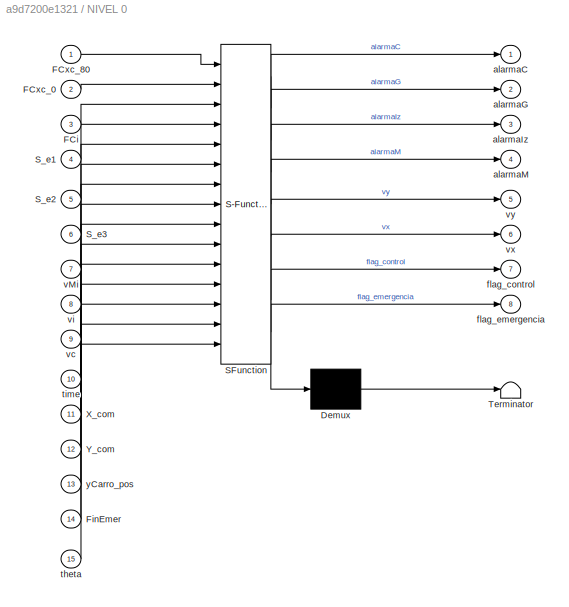
BLOCK [SubSystem] NIVEL 0
  ErrorFcn = Stateflow.Translate.translate
  PermitHierarchicalResolution = ExplicitOnly
  PortSchema = {"entries":[{"content":{"sides":[{"content":{"connectorIds":["In1","In2","In3","In4","In5","In6","In7","In8","In9","In11","In12","In13","In14","In15","In10"]},"type":"ConnectorPlacement.EquallySpacedRectSide","uuid":"257bd8b2-e50d-4f94-a780-554a728b2489"},{"content":{"connectorIds":["Out1","Out2","Out3","Out4","Out5","Out6","Out7","Out8"],"side":"RIGHT"},"type":"ConnectorPlacement.EquallySpacedRec...<+523ch>
  Ports = [15, 8]
  RequestExecContextInheritance = off
  SFBlockType = Chart
  TreatAsAtomicUnit = on
BLOCK [Demux] NIVEL 0/ Demux 
  Outputs = 1
  Ports = [1, 1]
BLOCK [S-Function] NIVEL 0/ SFunction 
  EnableBusSupport = on
  FunctionName = sf_sfun
  PortCounts = [15 9]
  Ports = [15, 9]
  SFcnIsStateOwnerBlock = off
  SFunctionDeploymentMode = off
  Tag = Stateflow S-Function 5
BLOCK [Terminator] NIVEL 0/ Terminator 
BLOCK [Inport] NIVEL 0/FCi
  Port = 3
BLOCK [Inport] NIVEL 0/FCxc_0
  Port = 2
BLOCK [Inport] NIVEL 0/FCxc_80
BLOCK [Inport] NIVEL 0/FinEmer
  Port = 14
BLOCK [Inport] NIVEL 0/S_e1
  Port = 4
BLOCK [Inport] NIVEL 0/S_e2
  Port = 5
BLOCK [Inport] NIVEL 0/S_e3
  Port = 6
BLOCK [Inport] NIVEL 0/X_com
  Port = 11
BLOCK [Inport] NIVEL 0/Y_com
  Port = 12
BLOCK [Outport] NIVEL 0/alarmaC
BLOCK [Outport] NIVEL 0/alarmaG
  Port = 2
BLOCK [Outport] NIVEL 0/alarmaIz
  Port = 3
BLOCK [Outport] NIVEL 0/alarmaM
  Port = 4
BLOCK [Outport] NIVEL 0/flag_control
  Port = 7
BLOCK [Outport] NIVEL 0/flag_emergencia
  Port = 8
BLOCK [Inport] NIVEL 0/theta
  Port = 15
BLOCK [Inport] NIVEL 0/time
  Port = 10
BLOCK [Inport] NIVEL 0/vMi
  Port = 7
BLOCK [Inport] NIVEL 0/vc
  Port = 9
BLOCK [Inport] NIVEL 0/vi
  Port = 8
BLOCK [Outport] NIVEL 0/vx
  Port = 6
BLOCK [Outport] NIVEL 0/vy
  Port = 5
BLOCK [Inport] NIVEL 0/yCarro_pos
  Port = 13
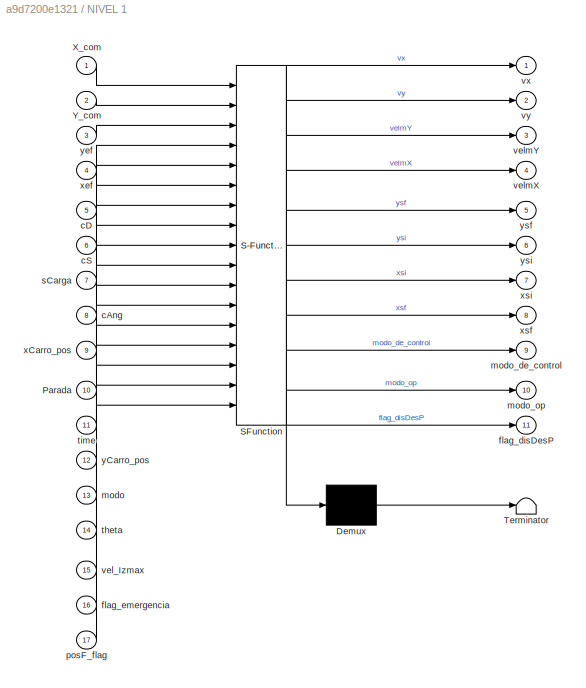
BLOCK [SubSystem] NIVEL 1
  ErrorFcn = Stateflow.Translate.translate
  PermitHierarchicalResolution = ExplicitOnly
  PortSchema = {"entries":[{"content":{"sides":[{"content":{"connectorIds":["In13","In1","In2","In5","In6","In10","In7","In14","In3","In4","In9","In12","In8","In15","In17","In16","In11"]},"type":"ConnectorPlacement.EquallySpacedRectSide","uuid":"1e4dd542-1771-4859-b91f-fc1cb250280a"},{"content":{"connectorIds":["Out1","Out2","Out9","Out7","Out6","Out8","Out5","Out4","Out3","Out10","Out11"],"side":"RIGHT"},"type"...<+560ch>
  Ports = [17, 11]
  RequestExecContextInheritance = off
  SFBlockType = Chart
  TreatAsAtomicUnit = on
BLOCK [Demux] NIVEL 1/ Demux 
  Outputs = 1
  Ports = [1, 1]
BLOCK [S-Function] NIVEL 1/ SFunction 
  EnableBusSupport = on
  FunctionName = sf_sfun
  PortCounts = [17 12]
  Ports = [17, 12]
  SFcnIsStateOwnerBlock = off
  SFunctionDeploymentMode = off
  Tag = Stateflow S-Function 1
BLOCK [Terminator] NIVEL 1/ Terminator 
BLOCK [Inport] NIVEL 1/Parada
  Port = 10
BLOCK [Inport] NIVEL 1/X_com
BLOCK [Inport] NIVEL 1/Y_com
  Port = 2
BLOCK [Inport] NIVEL 1/cAng
  Port = 8
BLOCK [Inport] NIVEL 1/cD
  Port = 5
BLOCK [Inport] NIVEL 1/cS
  Port = 6
BLOCK [Outport] NIVEL 1/flag_disDesP
  Port = 11
BLOCK [Inport] NIVEL 1/flag_emergencia
  Port = 16
BLOCK [Inport] NIVEL 1/modo
  Port = 13
BLOCK [Outport] NIVEL 1/modo_de_control
  Port = 9
BLOCK [Outport] NIVEL 1/modo_op
  Port = 10
BLOCK [Inport] NIVEL 1/posF_flag
  Port = 17
BLOCK [Inport] NIVEL 1/sCarga
  Port = 7
BLOCK [Inport] NIVEL 1/theta
  Port = 14
BLOCK [Inport] NIVEL 1/time
  Port = 11
BLOCK [Inport] NIVEL 1/vel_Izmax
  Port = 15
BLOCK [Outport] NIVEL 1/velmX
  Port = 4
BLOCK [Outport] NIVEL 1/velmY
  Port = 3
BLOCK [Outport] NIVEL 1/vx
BLOCK [Outport] NIVEL 1/vy
  Port = 2
BLOCK [Inport] NIVEL 1/xCarro_pos
  Port = 9
BLOCK [Inport] NIVEL 1/xef
  Port = 4
BLOCK [Outport] NIVEL 1/xsf
  Port = 8
BLOCK [Outport] NIVEL 1/xsi
  Port = 7
BLOCK [Inport] NIVEL 1/yCarro_pos
  Port = 12
BLOCK [Inport] NIVEL 1/yef
  Port = 3
BLOCK [Outport] NIVEL 1/ysf
  Port = 5
BLOCK [Outport] NIVEL 1/ysi
  Port = 6
BLOCK [SubSystem] Position_dump
  Ports = [2, 2, 1]
  RequestExecContextInheritance = off
BLOCK [EnablePort] Position_dump/Enable
  Ports = []
  PropagateVarSize = During execution
BLOCK [SubSystem] Position_dump/MATLAB Function
  ErrorFcn = Stateflow.Translate.translate
  PermitHierarchicalResolution = ExplicitOnly
  Ports = [2, 2]
  RequestExecContextInheritance = off
  SFBlockType = MATLAB Function
  TreatAsAtomicUnit = on
BLOCK [Demux] Position_dump/MATLAB Function/ Demux 
  Outputs = 1
  Ports = [1, 1]
BLOCK [S-Function] Position_dump/MATLAB Function/ SFunction 
  EnableBusSupport = on
  FunctionName = sf_sfun
  PortCounts = [2 3]
  Ports = [2, 3]
  SFcnIsStateOwnerBlock = off
  SFunctionDeploymentMode = off
  Tag = Stateflow S-Function 6
BLOCK [Terminator] Position_dump/MATLAB Function/ Terminator 
BLOCK [Inport] Position_dump/MATLAB Function/cont_i
  Port = 2
BLOCK [Inport] Position_dump/MATLAB Function/qd
BLOCK [Outport] Position_dump/MATLAB Function/vi
  Port = 2
BLOCK [Outport] Position_dump/MATLAB Function/vt
BLOCK [RateTransition] Position_dump/Rate Transition
BLOCK [Scope] Position_dump/Scope1
  Floating = off
  NumInputPorts = 1
  Ports = [1]
  ScopeSpecificationString = Simulink.scopes.TimeScopeBlockCfg('CurrentConfiguration', extmgr.ConfigurationSet(extmgr.Configuration('Core','General UI',true),extmgr.Configuration('Core','Source UI',true),extmgr.Configuration('Sources','WiredSimulink',true,'DataLoggingVariableName','ScopeData2'),extmgr.Configuration('Visuals','Time Domain',true,'SerializedDisplays',{struct('MinYLimReal','-2875.5','MaxYLimReal','28319.5','YLabe...<+1445ch>
BLOCK [Inport] Position_dump/counter
BLOCK [Inport] Position_dump/qd
  NameLocation = left
  Port = 2
BLOCK [Outport] Position_dump/vi
  NameLocation = right
  Port = 2
BLOCK [Outport] Position_dump/vt
  NameLocation = right
BLOCK [RateLimiter] Rate Limiter
  FallingSlewLimit = -2
  RisingSlewLimit = 2
  SampleTimeMode = inherited
BLOCK [RateLimiter] Rate Limiter1
  FallingSlewLimit = -2
  RisingSlewLimit = 2
  SampleTimeMode = inherited
BLOCK [RelationalOperator] Relational Operator
  InputSameDT = off
  Operator = ==
  OutDataTypeStr = boolean
  Ports = [2, 1]
  RndMeth = Simplest
BLOCK [Scope] Scope1
  Floating = off
  NumInputPorts = 2
  Ports = [2]
  ScopeSpecificationString = Simulink.scopes.TimeScopeBlockCfg('CurrentConfiguration', extmgr.ConfigurationSet(extmgr.Configuration('Core','General UI',true),extmgr.Configuration('Core','Source UI',true),extmgr.Configuration('Sources','WiredSimulink',true,'DataLoggingVariableName','ScopeData1'),extmgr.Configuration('Visuals','Time Domain',true,'SerializedDisplays',{struct('MinYLimReal','-1.00000','MaxYLimReal','1.00000','YLab...<+2108ch>
BLOCK [Scope] Scope2
  Floating = off
  NumInputPorts = 2
  Ports = [2]
  ScopeSpecificationString = Simulink.scopes.TimeScopeBlockCfg('CurrentConfiguration', extmgr.ConfigurationSet(extmgr.Configuration('Core','General UI',true),extmgr.Configuration('Core','Source UI',true),extmgr.Configuration('Sources','WiredSimulink',true,'DataLoggingVariableName','ScopeData2'),extmgr.Configuration('Visuals','Time Domain',true,'SerializedDisplays',{struct('MinYLimReal','22.8322','MaxYLimReal','67.85643','YLab...<+2069ch>
BLOCK [SubSystem] Seleccionado_control
  Ports = [6, 1]
  RequestExecContextInheritance = off
BLOCK [Inport] Seleccionado_control/0
  NameLocation = left
  Port = 2
BLOCK [Switch] Seleccionado_control/AutoOn//Off
  Criteria = u2 > Threshold
  InputSameDT = off
  SaturateOnIntegerOverflow = off
BLOCK [Inport] Seleccionado_control/AutoVxVy
  NameLocation = left
  Port = 5
BLOCK [Switch] Seleccionado_control/M_o_A
  Criteria = u2 > Threshold
  InputSameDT = off
  SaturateOnIntegerOverflow = off
BLOCK [Inport] Seleccionado_control/ManVxVy
  NameLocation = left
  Port = 6
BLOCK [Inport] Seleccionado_control/N0VxVy
  NameLocation = left
  Port = 3
BLOCK [Switch] Seleccionado_control/N0_o_N1
  Criteria = u2 > Threshold
  InputSameDT = off
  SaturateOnIntegerOverflow = off
BLOCK [Outport] Seleccionado_control/VxVy
BLOCK [Inport] Seleccionado_control/fModo
  NameLocation = left
BLOCK [Inport] Seleccionado_control/fN0-N1
  NameLocation = left
  Port = 4
BLOCK [Terminator] Terminator
BLOCK [Terminator] Terminator1
BLOCK [Terminator] Terminator2
BLOCK [Terminator] Terminator3
BLOCK [Terminator] Terminator4
BLOCK [Terminator] Terminator5
BLOCK [Reference] XY Graph  REF=simulink/Sinks/XY Graph
  Ports = [2]
  SourceBlock = simulink/Sinks/XY Graph
  SourceProductBaseCode = SL
  SourceType = XY scope.
BLOCK [Constant] control_angulo
BLOCK [SubSystem] dashboard1
  Ports = []
  RequestExecContextInheritance = off
BLOCK [LampBlock] dashboard1/Alarma Carro
BLOCK [LampBlock] dashboard1/Alarma General
BLOCK [LampBlock] dashboard1/Alarma Izaje
BLOCK [LampBlock] dashboard1/Alarma Sistema de Control
BLOCK [DashboardScope] dashboard1/Altura carg.
BLOCK [EditField] dashboard1/Altura de carga
  Alignment = Center
  LabelPosition = Hide
  ShowInitialText = on
BLOCK [LinearGaugeBlock] dashboard1/Angulo de carga
  LabelPosition = Hide
  ScaleMax = 0.15
  ScaleMin = -0.15
BLOCK [LampBlock] dashboard1/Distancia Despeje
BLOCK [LampBlock] dashboard1/Lamp3
  LabelPosition = Bottom
BLOCK [EditField] dashboard1/Masa
  Alignment = Center
  LabelPosition = Hide
  ShowInitialText = on
BLOCK [DisplayBlock] dashboard1/Modo
  Format = short
  LabelPosition = Hide
  Transparency = 1
BLOCK [DashboardScope] dashboard1/Pos barco muelle
BLOCK [EditField] dashboard1/Posicion Barco Muelle
  Alignment = Center
  LabelPosition = Hide
  ShowInitialText = on
BLOCK [PushButtonBlock] dashboard1/Push Button
  ButtonText = Fin Emergencia
BLOCK [PushButtonBlock] dashboard1/Push Button1
  ButtonText = Falla Microcontrolador1
  OnValue = 0
BLOCK [PushButtonBlock] dashboard1/Push Button2
  ButtonText = Falla Microcontrolador3
  OnValue = 0
BLOCK [PushButtonBlock] dashboard1/Push Button3
  ButtonText = Falla Microcontrolador2
  OnValue = 0
BLOCK [ToggleSwitchBlock] dashboard1/Toggle Switch
BLOCK [ToggleSwitchBlock] dashboard1/Toggle Switch1
BLOCK [DisplayBlock] dashboard1/Vel. max izaje
  Format = short
  LabelPosition = Hide
  Transparency = 1
BLOCK [Constant] masa_carga
  Value = 65000
BLOCK [Constant] pos_cambiada
BLOCK [SubSystem] sensor de carga
  Ports = [1, 1]
  RequestExecContextInheritance = off
BLOCK [Constant] sensor de carga/Constant5
BLOCK [Constant] sensor de carga/Constant6
  Value = 0
BLOCK [Inport] sensor de carga/In1
BLOCK [Outport] sensor de carga/Out1
BLOCK [Switch] sensor de carga/Switch1
  Criteria = u2 > Threshold
  InputSameDT = off
  SaturateOnIntegerOverflow = off
  Threshold = 15000
ANNOTATION (root): GRAFICOS
LINE Algoritmos de busqueda de camino y interpolacion/Astart:1 -> Algoritmos de busqueda de camino y interpolacion/Interpolador:1
LINE Algoritmos de busqueda de camino y interpolacion/Interpolador:1 -> Algoritmos de busqueda de camino y interpolacion/qd:1
LINE Algoritmos de busqueda de camino y interpolacion/StartX:1 -> Algoritmos de busqueda de camino y interpolacion/Astart:1
LINE Algoritmos de busqueda de camino y interpolacion/StartY:1 -> Algoritmos de busqueda de camino y interpolacion/Astart:2
LINE Algoritmos de busqueda de camino y interpolacion/velMaxX:1 -> Algoritmos de busqueda de camino y interpolacion/Interpolador:2
LINE Algoritmos de busqueda de camino y interpolacion/velMaxY:1 -> Algoritmos de busqueda de camino y interpolacion/Interpolador:3
LINE Algoritmos de busqueda de camino y interpolacion/x_obj:1 -> Algoritmos de busqueda de camino y interpolacion/Astart:3
LINE Algoritmos de busqueda de camino y interpolacion/y_obj:1 -> Algoritmos de busqueda de camino y interpolacion/Astart:4
LINE Algoritmos de busqueda de camino y interpolacion:1 -> Memory:1
LINE Clock1:1 -> NIVEL 1:11
LINE Clock2:1 -> NIVEL 0:10
LINE Constant11:1 -> NIVEL 1:4
LINE Constant12:1 -> NIVEL 1:3
LINE Constant1:1 -> Modelo de planta:3
LINE Constant2:1 -> Modelo de planta:5
NET Constant3:1 -> Mux2:1, Mux2:2
LINE Constant4:1 -> Relational Operator:2
LINE Constant:1 -> NIVEL 0:14
LINE Contolador Nivel 2/Constant1:1 -> Contolador Nivel 2/Switch:3
LINE Contolador Nivel 2/Constant3:1 -> Contolador Nivel 2/Varying PID Controller:5
LINE Contolador Nivel 2/Constant4:1 -> Contolador Nivel 2/Sum:2
NET Contolador Nivel 2/Control_de_angulo/Constant1:1 -> Contolador Nivel 2/Control_de_angulo/Product1:3, Contolador Nivel 2/Control_de_angulo/Product:2
NET Contolador Nivel 2/Control_de_angulo/Constant:1 -> Contolador Nivel 2/Control_de_angulo/Product1:2, Contolador Nivel 2/Control_de_angulo/Product2:1, Contolador Nivel 2/Control_de_angulo/Product:1
NET Contolador Nivel 2/Control_de_angulo/Gain:1 -> Contolador Nivel 2/Control_de_angulo/D:1, Contolador Nivel 2/Control_de_angulo/Scope1:2
LINE Contolador Nivel 2/Control_de_angulo/Product1:1 -> Contolador Nivel 2/Control_de_angulo/Gain:1
LINE Contolador Nivel 2/Control_de_angulo/Product2:1 -> Contolador Nivel 2/Control_de_angulo/I:1
NET Contolador Nivel 2/Control_de_angulo/Product:1 -> Contolador Nivel 2/Control_de_angulo/P:1, Contolador Nivel 2/Control_de_angulo/Scope1:1
LINE Contolador Nivel 2/Control_de_angulo/Square:1 -> Contolador Nivel 2/Control_de_angulo/Product:3
LINE Contolador Nivel 2/Control_de_angulo/Subsystem/Constant1:1 -> Contolador Nivel 2/Control_de_angulo/Subsystem/Sum:2
LINE Contolador Nivel 2/Control_de_angulo/Subsystem/Constant:1 -> Contolador Nivel 2/Control_de_angulo/Subsystem/Gain1:1
LINE Contolador Nivel 2/Control_de_angulo/Subsystem/Divide1:1 -> Contolador Nivel 2/Control_de_angulo/Subsystem/Sqrt:1
LINE Contolador Nivel 2/Control_de_angulo/Subsystem/Gain1:1 -> Contolador Nivel 2/Control_de_angulo/Subsystem/Divide1:1
LINE Contolador Nivel 2/Control_de_angulo/Subsystem/Gain:1 -> Contolador Nivel 2/Control_de_angulo/Subsystem/omega_n*10:1
NET Contolador Nivel 2/Control_de_angulo/Subsystem/Sqrt:1 -> Contolador Nivel 2/Control_de_angulo/Subsystem/Gain:1, Contolador Nivel 2/Control_de_angulo/Subsystem/Scope1:1
LINE Contolador Nivel 2/Control_de_angulo/Subsystem/Sum:1 -> Contolador Nivel 2/Control_de_angulo/Subsystem/Divide1:3
NET Contolador Nivel 2/Control_de_angulo/Subsystem/lh:1 -> Contolador Nivel 2/Control_de_angulo/Subsystem/Divide1:2, Contolador Nivel 2/Control_de_angulo/Subsystem/Scope:1
LINE Contolador Nivel 2/Control_de_angulo/Subsystem/ml:1 -> Contolador Nivel 2/Control_de_angulo/Subsystem/Sum:1
NET Contolador Nivel 2/Control_de_angulo/Subsystem:1 -> Contolador Nivel 2/Control_de_angulo/Product1:1, Contolador Nivel 2/Control_de_angulo/Product2:2, Contolador Nivel 2/Control_de_angulo/Square:1
LINE Contolador Nivel 2/Control_de_angulo/lh:1 -> Contolador Nivel 2/Control_de_angulo/Subsystem:1
LINE Contolador Nivel 2/Control_de_angulo/ml:1 -> Contolador Nivel 2/Control_de_angulo/Subsystem:2
LINE Contolador Nivel 2/Control_de_angulo:1 -> Contolador Nivel 2/Varying PID Controller:2
LINE Contolador Nivel 2/Control_de_angulo:2 -> Contolador Nivel 2/Varying PID Controller:3
LINE Contolador Nivel 2/Control_de_angulo:3 -> Contolador Nivel 2/Varying PID Controller:4
LINE Contolador Nivel 2/Derivative2:1 -> Contolador Nivel 2/Mux:2
LINE Contolador Nivel 2/Fuzzy Logic Controller with Ruleviewer:1 -> Contolador Nivel 2/Product:1
LINE Contolador Nivel 2/M_c/Tm*:1 -> Contolador Nivel 2/M_c/Transfer Fcn:1
LINE Contolador Nivel 2/M_c/Transfer Fcn:1 -> Contolador Nivel 2/M_c/Tm:1
LINE Contolador Nivel 2/M_c:1 -> Contolador Nivel 2/Tm:1
LINE Contolador Nivel 2/M_i/Thm*:1 -> Contolador Nivel 2/M_i/Transfer Fcn:1
LINE Contolador Nivel 2/M_i/Transfer Fcn:1 -> Contolador Nivel 2/M_i/Thm:1
LINE Contolador Nivel 2/M_i:1 -> Contolador Nivel 2/Thm:1
LINE Contolador Nivel 2/Mux:1 -> Contolador Nivel 2/Rate Transition:1
LINE Contolador Nivel 2/PID_c/Gain1:1 -> Contolador Nivel 2/PID_c/Sum1:1
LINE Contolador Nivel 2/PID_c/Gain2:1 -> Contolador Nivel 2/PID_c/Sum1:3
LINE Contolador Nivel 2/PID_c/Gain:1 -> Contolador Nivel 2/PID_c/Sum1:2
NET Contolador Nivel 2/PID_c/Integrator1:1 -> Contolador Nivel 2/PID_c/Gain:1, Contolador Nivel 2/PID_c/Integrator:1
LINE Contolador Nivel 2/PID_c/Integrator:1 -> Contolador Nivel 2/PID_c/Gain1:1
LINE Contolador Nivel 2/PID_c/Sum1:1 -> Contolador Nivel 2/PID_c/Tm*':1
NET Contolador Nivel 2/PID_c/Sum:1 -> Contolador Nivel 2/PID_c/Gain2:1, Contolador Nivel 2/PID_c/Integrator1:1
LINE Contolador Nivel 2/PID_c/dxc*:1 -> Contolador Nivel 2/PID_c/Sum:1
LINE Contolador Nivel 2/PID_c/dxc:1 -> Contolador Nivel 2/PID_c/Sum:2
LINE Contolador Nivel 2/PID_c:1 -> Contolador Nivel 2/Product:2
LINE Contolador Nivel 2/PID_i/Gain1:1 -> Contolador Nivel 2/PID_i/Sum1:1
LINE Contolador Nivel 2/PID_i/Gain2:1 -> Contolador Nivel 2/PID_i/Sum1:3
LINE Contolador Nivel 2/PID_i/Gain:1 -> Contolador Nivel 2/PID_i/Sum1:2
LINE Contolador Nivel 2/PID_i/Integrator1:1 -> Contolador Nivel 2/PID_i/Gain1:1
NET Contolador Nivel 2/PID_i/Integrator:1 -> Contolador Nivel 2/PID_i/Gain:1, Contolador Nivel 2/PID_i/Integrator1:1
LINE Contolador Nivel 2/PID_i/Sum1:1 -> Contolador Nivel 2/PID_i/Thm*':1
NET Contolador Nivel 2/PID_i/Sum:1 -> Contolador Nivel 2/PID_i/Gain2:1, Contolador Nivel 2/PID_i/Integrator:1
LINE Contolador Nivel 2/PID_i/dyi*:1 -> Contolador Nivel 2/PID_i/Sum:1
LINE Contolador Nivel 2/PID_i/dyi:1 -> Contolador Nivel 2/PID_i/Sum:2
LINE Contolador Nivel 2/PID_i:1 -> Contolador Nivel 2/M_i:1
LINE Contolador Nivel 2/Product:1 -> Contolador Nivel 2/Sum1:2
LINE Contolador Nivel 2/Rate Transition:1 -> Contolador Nivel 2/Fuzzy Logic Controller with Ruleviewer:1
LINE Contolador Nivel 2/Sum1:1 -> Contolador Nivel 2/M_c:1
LINE Contolador Nivel 2/Sum:1 -> Contolador Nivel 2/Varying PID Controller:1
NET Contolador Nivel 2/Suministro_electrico1:1 -> Contolador Nivel 2/Control_de_angulo:enable, Contolador Nivel 2/S_e1:1
NET Contolador Nivel 2/Suministro_electrico2:1 -> Contolador Nivel 2/PID_c:enable, Contolador Nivel 2/S_e2:1
NET Contolador Nivel 2/Suministro_electrico3:1 -> Contolador Nivel 2/PID_i:enable, Contolador Nivel 2/S_e3:1
LINE Contolador Nivel 2/Switch:1 -> Contolador Nivel 2/Sum1:1
LINE Contolador Nivel 2/Varying PID Controller:1 -> Contolador Nivel 2/Switch:1
NET Contolador Nivel 2/ang:1 -> Contolador Nivel 2/Derivative2:1, Contolador Nivel 2/Mux:1, Contolador Nivel 2/Sum:1
LINE Contolador Nivel 2/dxc*:1 -> Contolador Nivel 2/PID_c:2
LINE Contolador Nivel 2/dxc:1 -> Contolador Nivel 2/PID_c:1
LINE Contolador Nivel 2/dyi*:1 -> Contolador Nivel 2/PID_i:1
LINE Contolador Nivel 2/dyi:1 -> Contolador Nivel 2/PID_i:2
LINE Contolador Nivel 2/fCAng:1 -> Contolador Nivel 2/Switch:2
LINE Contolador Nivel 2/lh:1 -> Contolador Nivel 2/Control_de_angulo:1
LINE Contolador Nivel 2/ml:1 -> Contolador Nivel 2/Control_de_angulo:2
LINE Contolador Nivel 2:1 -> Modelo de planta:1
LINE Contolador Nivel 2:2 -> Modelo de planta:2
LINE Contolador Nivel 2:3 -> Goto7:1
LINE Contolador Nivel 2:4 -> Goto8:1
LINE Contolador Nivel 2:5 -> Goto9:1
LINE Counter:1 -> Position_dump:1
NET CurvaPortencia:1 -> Goto11:1, NIVEL 1:15
LINE Demux:1 -> Rate Limiter:1
LINE Demux:2 -> Rate Limiter1:1
LINE Derivative3:1 -> Seleccionado_control:5
LINE FinalCarrera/Constant1:1 -> FinalCarrera/Switch:3
LINE FinalCarrera/Constant:1 -> FinalCarrera/Switch:1
LINE FinalCarrera/Switch:1 -> FinalCarrera/FCxc>80:1
LINE FinalCarrera/xc:1 -> FinalCarrera/Switch:2
LINE FinalCarrera1/Constant1:1 -> FinalCarrera1/Switch:3
LINE FinalCarrera1/Constant:1 -> FinalCarrera1/Switch:1
LINE FinalCarrera1/Gain:1 -> FinalCarrera1/Switch:2
LINE FinalCarrera1/Switch:1 -> FinalCarrera1/FCxc<0:1
LINE FinalCarrera1/xc:1 -> FinalCarrera1/Gain:1
LINE FinalCarrera1:1 -> Goto15:1
LINE FinalCarrera2/Constant1:1 -> FinalCarrera2/Switch:3
LINE FinalCarrera2/Constant:1 -> FinalCarrera2/Switch:1
LINE FinalCarrera2/Gain:1 -> FinalCarrera2/Switch:2
LINE FinalCarrera2/Switch:1 -> FinalCarrera2/FCi:1
LINE FinalCarrera2/lh:1 -> FinalCarrera2/Gain:1
LINE FinalCarrera2:1 -> Goto13:1
LINE FinalCarrera:1 -> Goto14:1
LINE From10:1 -> Contolador Nivel 2:4
LINE From11:1 -> NIVEL 0:9
LINE From12:1 -> XY Graph:1
LINE From13:1 -> NIVEL 1:9
LINE From14:1 -> Contolador Nivel 2:6
LINE From15:1 -> Modelo de planta:4
LINE From16:1 -> NIVEL 0:4
LINE From17:1 -> NIVEL 0:5
LINE From18:1 -> NIVEL 0:6
NET From19:1 -> NIVEL 0:11, NIVEL 0:12
LINE From1:1 -> NIVEL 0:8
LINE From20:1 -> NIVEL 0:7
LINE From21:1 -> NIVEL 1:16
LINE From22:1 -> NIVEL 0:1
LINE From23:1 -> NIVEL 0:2
LINE From24:1 -> NIVEL 0:3
LINE From25:1 -> Mux1:1
LINE From26:1 -> Seleccionado_control:4
LINE From27:1 -> Mux4:1
LINE From28:1 -> Mux4:2
LINE From29:1 -> XY Graph:2
LINE From2:1 -> FinalCarrera2:1
LINE From30:1 -> Contolador Nivel 2:8
LINE From3:1 -> Contolador Nivel 2:5
LINE From4:1 -> Contolador Nivel 2:7
LINE From5:1 -> NIVEL 0:13
LINE From6:1 -> NIVEL 1:12
LINE From7:1 -> Contolador Nivel 2:1
LINE From8:1 -> NIVEL 1:14
LINE From9:1 -> NIVEL 0:15
LINE From:1 -> Mux1:2
NET Keyboard 2:1 -> Display3:1, Goto10:1, NIVEL 1:1, NIVEL 1:10, NIVEL 1:13, NIVEL 1:2, NIVEL 1:5, NIVEL 1:6
LINE Memory/u:1 -> Memory/y:1
LINE Memory:1 -> Position_dump:2
LINE Mode:1 -> Terminator:1
LINE Modelo de planta/Carga/Constant:1 -> Modelo de planta/Carga/longitud:4
NET Modelo de planta/Carga/Derivative:1 -> Modelo de planta/Carga/Fuerza W:3, Modelo de planta/Carga/Scope:2
NET Modelo de planta/Carga/From10:1 -> Modelo de planta/Carga/Fuerza W:1, Modelo de planta/Carga/Scope:1
LINE Modelo de planta/Carga/From11:1 -> Modelo de planta/Carga/xl:1
LINE Modelo de planta/Carga/From12:1 -> Modelo de planta/Carga/yl:1
LINE Modelo de planta/Carga/From13:1 -> Modelo de planta/Carga/theta:1
LINE Modelo de planta/Carga/From14:1 -> Modelo de planta/Carga/Fw:1
LINE Modelo de planta/Carga/From15:1 -> Modelo de planta/Carga/longitud:1
LINE Modelo de planta/Carga/From16:1 -> Modelo de planta/Carga/longitud:2
LINE Modelo de planta/Carga/From17:1 -> Modelo de planta/Carga/dl:1
LINE Modelo de planta/Carga/From18:1 -> Modelo de planta/Carga/l:1
LINE Modelo de planta/Carga/From1:1 -> Modelo de planta/Carga/x y load:2
LINE Modelo de planta/Carga/From2:1 -> Modelo de planta/Carga/dxl:1
LINE Modelo de planta/Carga/From3:1 -> Modelo de planta/Carga/longitud:3
LINE Modelo de planta/Carga/From4:1 -> Modelo de planta/Carga/Fuerza W:4
LINE Modelo de planta/Carga/From5:1 -> Modelo de planta/Carga/Fuerza W:2
LINE Modelo de planta/Carga/From6:1 -> Modelo de planta/Carga/derivada l:7
LINE Modelo de planta/Carga/From8:1 -> Modelo de planta/Carga/derivada l:8
LINE Modelo de planta/Carga/From9:1 -> Modelo de planta/Carga/derivada l:5
LINE Modelo de planta/Carga/From:1 -> Modelo de planta/Carga/x y load:1
LINE Modelo de planta/Carga/Fuerza W/Gain1:1 -> Modelo de planta/Carga/Fuerza W/Switch:3
LINE Modelo de planta/Carga/Fuerza W/Gain2:1 -> Modelo de planta/Carga/Fuerza W/Sum2:2
LINE Modelo de planta/Carga/Fuerza W/Gain:1 -> Modelo de planta/Carga/Fuerza W/Switch:1
LINE Modelo de planta/Carga/Fuerza W/Sum1:1 -> Modelo de planta/Carga/Fuerza W/Gain2:1
LINE Modelo de planta/Carga/Fuerza W/Sum2:1 -> Modelo de planta/Carga/Fuerza W/Fw:1
NET Modelo de planta/Carga/Fuerza W/Sum:1 -> Modelo de planta/Carga/Fuerza W/Gain1:1, Modelo de planta/Carga/Fuerza W/Gain:1
LINE Modelo de planta/Carga/Fuerza W/Switch:1 -> Modelo de planta/Carga/Fuerza W/Sum2:1
LINE Modelo de planta/Carga/Fuerza W/dl:1 -> Modelo de planta/Carga/Fuerza W/Sum1:1
LINE Modelo de planta/Carga/Fuerza W/dlh:1 -> Modelo de planta/Carga/Fuerza W/Sum1:2
LINE Modelo de planta/Carga/Fuerza W/l:1 -> Modelo de planta/Carga/Fuerza W/Sum:1
LINE Modelo de planta/Carga/Fuerza W/lh:1 -> Modelo de planta/Carga/Fuerza W/Sum:2
LINE Modelo de planta/Carga/Fuerza W/yl-yc0:1 -> Modelo de planta/Carga/Fuerza W/Switch:2
LINE Modelo de planta/Carga/Fuerza W:1 -> Modelo de planta/Carga/Goto1:1
LINE Modelo de planta/Carga/derivada l/Divide:1 -> Modelo de planta/Carga/derivada l/dl:1
LINE Modelo de planta/Carga/derivada l/Product1:1 -> Modelo de planta/Carga/derivada l/Sum3:2
LINE Modelo de planta/Carga/derivada l/Product:1 -> Modelo de planta/Carga/derivada l/Sum3:1
LINE Modelo de planta/Carga/derivada l/Sum1:1 -> Modelo de planta/Carga/derivada l/Product:2
LINE Modelo de planta/Carga/derivada l/Sum2:1 -> Modelo de planta/Carga/derivada l/Product1:1
LINE Modelo de planta/Carga/derivada l/Sum3:1 -> Modelo de planta/Carga/derivada l/Divide:1
NET Modelo de planta/Carga/derivada l/Sum:1 -> Modelo de planta/Carga/derivada l/Product:1, Modelo de planta/Carga/derivada l/Scope:1
NET Modelo de planta/Carga/derivada l/dxc:1 -> Modelo de planta/Carga/derivada l/Scope:3, Modelo de planta/Carga/derivada l/Sum1:2
NET Modelo de planta/Carga/derivada l/dxl:1 -> Modelo de planta/Carga/derivada l/Scope:2, Modelo de planta/Carga/derivada l/Sum1:1
LINE Modelo de planta/Carga/derivada l/dyl:1 -> Modelo de planta/Carga/derivada l/Product1:2
LINE Modelo de planta/Carga/derivada l/l:1 -> Modelo de planta/Carga/derivada l/Divide:2
LINE Modelo de planta/Carga/derivada l/xc:1 -> Modelo de planta/Carga/derivada l/Sum:2
LINE Modelo de planta/Carga/derivada l/xl:1 -> Modelo de planta/Carga/derivada l/Sum:1
LINE Modelo de planta/Carga/derivada l/yl:1 -> Modelo de planta/Carga/derivada l/Sum2:2
LINE Modelo de planta/Carga/derivada l/yt0:1 -> Modelo de planta/Carga/derivada l/Sum2:1
LINE Modelo de planta/Carga/derivada l:1 -> Modelo de planta/Carga/Goto10:1
LINE Modelo de planta/Carga/dlh:1 -> Modelo de planta/Carga/Goto5:1
LINE Modelo de planta/Carga/dxc:1 -> Modelo de planta/Carga/Goto6:1
LINE Modelo de planta/Carga/lh:1 -> Modelo de planta/Carga/Goto4:1
LINE Modelo de planta/Carga/longitud/Atan2:1 -> Modelo de planta/Carga/longitud/Saturation:1
LINE Modelo de planta/Carga/longitud/Saturation:1 -> Modelo de planta/Carga/longitud/theta:1
LINE Modelo de planta/Carga/longitud/Sqrt:1 -> Modelo de planta/Carga/longitud/l:1
LINE Modelo de planta/Carga/longitud/Square1:1 -> Modelo de planta/Carga/longitud/Sum2:2
LINE Modelo de planta/Carga/longitud/Square:1 -> Modelo de planta/Carga/longitud/Sum2:1
NET Modelo de planta/Carga/longitud/Sum1:1 -> Modelo de planta/Carga/longitud/Atan2:2, Modelo de planta/Carga/longitud/Square1:1
LINE Modelo de planta/Carga/longitud/Sum2:1 -> Modelo de planta/Carga/longitud/Sqrt:1
NET Modelo de planta/Carga/longitud/Sum:1 -> Modelo de planta/Carga/longitud/Atan2:1, Modelo de planta/Carga/longitud/Square:1
LINE Modelo de planta/Carga/longitud/xc:1 -> Modelo de planta/Carga/longitud/Sum:2
LINE Modelo de planta/Carga/longitud/xl:1 -> Modelo de planta/Carga/longitud/Sum:1
LINE Modelo de planta/Carga/longitud/yl:1 -> Modelo de planta/Carga/longitud/Sum1:2
LINE Modelo de planta/Carga/longitud/yt0:1 -> Modelo de planta/Carga/longitud/Sum1:1
NET Modelo de planta/Carga/longitud:1 -> Modelo de planta/Carga/Derivative:1, Modelo de planta/Carga/Goto7:1, Modelo de planta/Carga/Scope:3
LINE Modelo de planta/Carga/longitud:2 -> Modelo de planta/Carga/Goto:1
LINE Modelo de planta/Carga/ml:1 -> Modelo de planta/Carga/x y load:3
LINE Modelo de planta/Carga/x y load/Constant:1 -> Modelo de planta/Carga/x y load/Sum1:1
LINE Modelo de planta/Carga/x y load/Cos:1 -> Modelo de planta/Carga/x y load/Product1:1
LINE Modelo de planta/Carga/x y load/Divide1:1 -> Modelo de planta/Carga/x y load/Sum1:2
LINE Modelo de planta/Carga/x y load/Divide:1 -> Modelo de planta/Carga/x y load/Integrator:1
NET Modelo de planta/Carga/x y load/Fw:1 -> Modelo de planta/Carga/x y load/Product1:2, Modelo de planta/Carga/x y load/Product:1
LINE Modelo de planta/Carga/x y load/Gain2:1 -> Modelo de planta/Carga/x y load/Sum3:2
LINE Modelo de planta/Carga/x y load/Gain3:1 -> Modelo de planta/Carga/x y load/Sum3:3
NET Modelo de planta/Carga/x y load/Gain4:1 -> Modelo de planta/Carga/x y load/Sum:1, Modelo de planta/Carga/x y load/Switch:1
NET Modelo de planta/Carga/x y load/Gain5:1 -> Modelo de planta/Carga/x y load/Scope:1, Modelo de planta/Carga/x y load/Switch1:2, Modelo de planta/Carga/x y load/Switch:2, Modelo de planta/Carga/x y load/yl-yc0:1
LINE Modelo de planta/Carga/x y load/Gain:1 -> Modelo de planta/Carga/x y load/Sum:2
LINE Modelo de planta/Carga/x y load/Integrator1:1 -> Modelo de planta/Carga/x y load/xl:1
NET Modelo de planta/Carga/x y load/Integrator2:1 -> Modelo de planta/Carga/x y load/Gain3:1, Modelo de planta/Carga/x y load/Integrator3:1, Modelo de planta/Carga/x y load/dyl:1
NET Modelo de planta/Carga/x y load/Integrator3:1 -> Modelo de planta/Carga/x y load/Sum2:2, Modelo de planta/Carga/x y load/yl:1
NET Modelo de planta/Carga/x y load/Integrator:1 -> Modelo de planta/Carga/x y load/Gain:1, Modelo de planta/Carga/x y load/Integrator1:1, Modelo de planta/Carga/x y load/dxl:1
NET Modelo de planta/Carga/x y load/Product1:1 -> Modelo de planta/Carga/x y load/Sum3:1, Modelo de planta/Carga/x y load/Switch1:1
LINE Modelo de planta/Carga/x y load/Product:1 -> Modelo de planta/Carga/x y load/Gain4:1
LINE Modelo de planta/Carga/x y load/Sin:1 -> Modelo de planta/Carga/x y load/Product:2
LINE Modelo de planta/Carga/x y load/Sum1:1 -> Modelo de planta/Carga/x y load/Integrator2:1
NET Modelo de planta/Carga/x y load/Sum2:1 -> Modelo de planta/Carga/x y load/Gain2:1, Modelo de planta/Carga/x y load/Gain5:1
LINE Modelo de planta/Carga/x y load/Sum3:1 -> Modelo de planta/Carga/x y load/Switch1:3
LINE Modelo de planta/Carga/x y load/Sum:1 -> Modelo de planta/Carga/x y load/Switch:3
LINE Modelo de planta/Carga/x y load/Switch1:1 -> Modelo de planta/Carga/x y load/Divide1:2
LINE Modelo de planta/Carga/x y load/Switch:1 -> Modelo de planta/Carga/x y load/Divide:1
NET Modelo de planta/Carga/x y load/Theta:1 -> Modelo de planta/Carga/x y load/Cos:1, Modelo de planta/Carga/x y load/Sin:1
NET Modelo de planta/Carga/x y load/ml:1 -> Modelo de planta/Carga/x y load/Divide1:1, Modelo de planta/Carga/x y load/Divide:2
LINE Modelo de planta/Carga/x y load/xc0:1 -> Modelo de planta/Carga/x y load/Integrator1:2
LINE Modelo de planta/Carga/x y load/yc0:1 -> Modelo de planta/Carga/x y load/Sum2:1
LINE Modelo de planta/Carga/x y load/yt0:1 -> Modelo de planta/Carga/x y load/Integrator3:2
NET Modelo de planta/Carga/x y load:1 -> Modelo de planta/Carga/Goto8:1, Modelo de planta/Carga/derivada l:1
NET Modelo de planta/Carga/x y load:2 -> Modelo de planta/Carga/Goto2:1, Modelo de planta/Carga/derivada l:2
NET Modelo de planta/Carga/x y load:3 -> Modelo de planta/Carga/Goto9:1, Modelo de planta/Carga/derivada l:3
LINE Modelo de planta/Carga/x y load:4 -> Modelo de planta/Carga/derivada l:4
NET Modelo de planta/Carga/x y load:5 -> Modelo de planta/Carga/Fuerza W:5, Modelo de planta/Carga/Scope:4
LINE Modelo de planta/Carga/xc0:1 -> Modelo de planta/Carga/x y load:4
LINE Modelo de planta/Carga/xc:1 -> Modelo de planta/Carga/Goto3:1
LINE Modelo de planta/Carga/yc0:1 -> Modelo de planta/Carga/x y load:6
NET Modelo de planta/Carga/yt0:1 -> Modelo de planta/Carga/derivada l:6, Modelo de planta/Carga/x y load:5
LINE Modelo de planta/Carga:1 -> Modelo de planta/xl:1
LINE Modelo de planta/Carga:2 -> Modelo de planta/yl:1
LINE Modelo de planta/Carga:3 -> Modelo de planta/Goto:1
LINE Modelo de planta/Carga:4 -> Modelo de planta/Goto1:1
LINE Modelo de planta/Carga:5 -> Modelo de planta/l:1
LINE Modelo de planta/Carga:6 -> Modelo de planta/dl:1
LINE Modelo de planta/From13:1 -> Modelo de planta/ModeloCarro:2
LINE Modelo de planta/From14:1 -> Modelo de planta/ModeloCarro:1
LINE Modelo de planta/From1:1 -> Modelo de planta/ModeloIzaje:2
LINE Modelo de planta/From2:1 -> Modelo de planta/theta:1
LINE Modelo de planta/From3:1 -> Modelo de planta/Fw:1
LINE Modelo de planta/ModeloCarro/Fw:1 -> Modelo de planta/ModeloCarro/Product:1
LINE Modelo de planta/ModeloCarro/Gain1:1 -> Modelo de planta/ModeloCarro/Sum:3
LINE Modelo de planta/ModeloCarro/Gain2:1 -> Modelo de planta/ModeloCarro/Integrator:1
LINE Modelo de planta/ModeloCarro/Gain:1 -> Modelo de planta/ModeloCarro/Sum:2
LINE Modelo de planta/ModeloCarro/Integrator1:1 -> Modelo de planta/ModeloCarro/xc:1
NET Modelo de planta/ModeloCarro/Integrator:1 -> Modelo de planta/ModeloCarro/Gain1:1, Modelo de planta/ModeloCarro/Integrator1:1, Modelo de planta/ModeloCarro/dxc:1
LINE Modelo de planta/ModeloCarro/Product:1 -> Modelo de planta/ModeloCarro/Sum:1
LINE Modelo de planta/ModeloCarro/Sum:1 -> Modelo de planta/ModeloCarro/Gain2:1
LINE Modelo de planta/ModeloCarro/Tm:1 -> Modelo de planta/ModeloCarro/Gain:1
LINE Modelo de planta/ModeloCarro/Trigonometric Function:1 -> Modelo de planta/ModeloCarro/Product:2
LINE Modelo de planta/ModeloCarro/theta:1 -> Modelo de planta/ModeloCarro/Trigonometric Function:1
LINE Modelo de planta/ModeloCarro/xc0:1 -> Modelo de planta/ModeloCarro/Integrator1:2
NET Modelo de planta/ModeloCarro:1 -> Modelo de planta/Carga:3, Modelo de planta/Piso:1, Modelo de planta/Scope:1, Modelo de planta/XY Graph:1, Modelo de planta/xc:1
NET Modelo de planta/ModeloCarro:2 -> Modelo de planta/Carga:4, Modelo de planta/Scope1:2, Modelo de planta/dxc:1
LINE Modelo de planta/ModeloIzaje/Constant:1 -> Modelo de planta/ModeloIzaje/Sum1:2
LINE Modelo de planta/ModeloIzaje/Fw:1 -> Modelo de planta/ModeloIzaje/Sum:1
LINE Modelo de planta/ModeloIzaje/Gain1:1 -> Modelo de planta/ModeloIzaje/Sum:3
LINE Modelo de planta/ModeloIzaje/Gain2:1 -> Modelo de planta/ModeloIzaje/Integrator:1
LINE Modelo de planta/ModeloIzaje/Gain:1 -> Modelo de planta/ModeloIzaje/Sum:2
LINE Modelo de planta/ModeloIzaje/Integrator1:1 -> Modelo de planta/ModeloIzaje/lh:1
NET Modelo de planta/ModeloIzaje/Integrator:1 -> Modelo de planta/ModeloIzaje/Gain1:1, Modelo de planta/ModeloIzaje/Integrator1:1, Modelo de planta/ModeloIzaje/dlh:1
LINE Modelo de planta/ModeloIzaje/Sum1:1 -> Modelo de planta/ModeloIzaje/Integrator1:2
LINE Modelo de planta/ModeloIzaje/Sum:1 -> Modelo de planta/ModeloIzaje/Gain2:1
LINE Modelo de planta/ModeloIzaje/Thm:1 -> Modelo de planta/ModeloIzaje/Gain:1
LINE Modelo de planta/ModeloIzaje/yt0:1 -> Modelo de planta/ModeloIzaje/Sum1:1
NET Modelo de planta/ModeloIzaje:1 -> Modelo de planta/Carga:5, Modelo de planta/Scope:2, Modelo de planta/XY Graph:2, Modelo de planta/lh:1
NET Modelo de planta/ModeloIzaje:2 -> Modelo de planta/Carga:6, Modelo de planta/Scope1:1, Modelo de planta/dlh:1
LINE Modelo de planta/Piso/Constant:1 -> Modelo de planta/Piso/yc:1
LINE Modelo de planta/Piso:1 -> Modelo de planta/Carga:1
LINE Modelo de planta/Thm:1 -> Modelo de planta/ModeloIzaje:3
LINE Modelo de planta/Tm:1 -> Modelo de planta/ModeloCarro:3
LINE Modelo de planta/ml:1 -> Modelo de planta/Carga:2
NET Modelo de planta/xc0:1 -> Modelo de planta/Carga:7, Modelo de planta/ModeloCarro:4
NET Modelo de planta/yt0:1 -> Modelo de planta/Carga:8, Modelo de planta/ModeloIzaje:1
LINE Modelo de planta:1 -> Goto4:1
NET Modelo de planta:10 -> FinalCarrera1:1, FinalCarrera:1
LINE Modelo de planta:2 -> Goto5:1
LINE Modelo de planta:3 -> Goto2:1
NET Modelo de planta:4 -> Goto3:1, Scope1:1
LINE Modelo de planta:5 -> Scope1:2
LINE Modelo de planta:6 -> Scope2:1
LINE Modelo de planta:7 -> Scope2:2
LINE Modelo de planta:8 -> Goto:1
LINE Modelo de planta:9 -> Goto1:1
LINE Mux1:1 -> Seleccionado_control:3
LINE Mux2:1 -> Seleccionado_control:2
LINE Mux3:1 -> Derivative3:1
LINE Mux4:1 -> Seleccionado_control:6
LINE NIVEL 0:1 -> Terminator1:1
LINE NIVEL 0:2 -> Terminator2:1
LINE NIVEL 0:3 -> Terminator3:1
LINE NIVEL 0:4 -> Terminator4:1
LINE NIVEL 0:5 -> Goto16:1
LINE NIVEL 0:6 -> Goto17:1
LINE NIVEL 0:7 -> Goto18:1
LINE NIVEL 0:8 -> Goto12:1
LINE NIVEL 1:1 -> Goto19:1
LINE NIVEL 1:10 -> Mode:1
LINE NIVEL 1:11 -> Terminator5:1
LINE NIVEL 1:2 -> Goto20:1
LINE NIVEL 1:3 -> Algoritmos de busqueda de camino y interpolacion:6
LINE NIVEL 1:4 -> Algoritmos de busqueda de camino y interpolacion:5
LINE NIVEL 1:5 -> Algoritmos de busqueda de camino y interpolacion:4
LINE NIVEL 1:6 -> Algoritmos de busqueda de camino y interpolacion:2
LINE NIVEL 1:7 -> Algoritmos de busqueda de camino y interpolacion:1
LINE NIVEL 1:8 -> Algoritmos de busqueda de camino y interpolacion:3
NET NIVEL 1:9 -> Algoritmos de busqueda de camino y interpolacion:trigger, Memory:enable, Position_dump:enable, Relational Operator:1, Seleccionado_control:1
LINE Position_dump/MATLAB Function:1 -> Position_dump/vt:1
LINE Position_dump/MATLAB Function:2 -> Position_dump/vi:1
NET Position_dump/Rate Transition:1 -> Position_dump/MATLAB Function:2, Position_dump/Scope1:1
LINE Position_dump/counter:1 -> Position_dump/Rate Transition:1
LINE Position_dump/qd:1 -> Position_dump/MATLAB Function:1
LINE Position_dump:1 -> Mux3:1
LINE Position_dump:2 -> Mux3:2
LINE Rate Limiter1:1 -> Contolador Nivel 2:3
LINE Rate Limiter:1 -> Contolador Nivel 2:2
LINE Relational Operator:1 -> Counter:1
LINE Seleccionado_control/0:1 -> Seleccionado_control/AutoOn//Off:3
LINE Seleccionado_control/AutoOn//Off:1 -> Seleccionado_control/M_o_A:1
LINE Seleccionado_control/AutoVxVy:1 -> Seleccionado_control/AutoOn//Off:1
LINE Seleccionado_control/M_o_A:1 -> Seleccionado_control/N0_o_N1:3
LINE Seleccionado_control/ManVxVy:1 -> Seleccionado_control/M_o_A:3
LINE Seleccionado_control/N0VxVy:1 -> Seleccionado_control/N0_o_N1:1
LINE Seleccionado_control/N0_o_N1:1 -> Seleccionado_control/VxVy:1
NET Seleccionado_control/fModo:1 -> Seleccionado_control/AutoOn//Off:2, Seleccionado_control/M_o_A:2
LINE Seleccionado_control/fN0-N1:1 -> Seleccionado_control/N0_o_N1:2
LINE Seleccionado_control:1 -> Demux:1
NET control_angulo:1 -> Goto21:1, NIVEL 1:8
NET masa_carga:1 -> CurvaPortencia:1, Goto6:1, sensor de carga:1
LINE pos_cambiada:1 -> NIVEL 1:17
LINE sensor de carga/Constant5:1 -> sensor de carga/Switch1:1
LINE sensor de carga/Constant6:1 -> sensor de carga/Switch1:3
LINE sensor de carga/In1:1 -> sensor de carga/Switch1:2
LINE sensor de carga/Switch1:1 -> sensor de carga/Out1:1
LINE sensor de carga:1 -> NIVEL 1:7
note: NET lines group one-source signal fan-out (src -> all destinations, sorted); 1:1 wires keep LINE
CHART NIVEL 1 states=26 transitions=26
  STATE_LABEL 'Nivel1'
  STATE_LABEL 'Spreder'
  STATE_LABEL 'Descargado\nen:\nScargado=0'
  STATE_LABEL 'Cargado\nen:\nScargado=1'
  STATE_LABEL '[sCarga==1]'
  STATE_LABEL '[sCarga==0]'
  STATE_LABEL 'controlAngulo'
  STATE_LABEL 'Desactivado'
  STATE_LABEL 'Activado'
  STATE_LABEL '[cAng==0]'
  STATE_LABEL '[cAng==1]'
  STATE_LABEL 'modoOperacion'
  STATE_LABEL 'Automatico'
  STATE_LABEL 'CicloSimple'
  STATE_LABEL 'descaragBarco\nen :\nxsi=xCarro_pos;\nysi=yCarro_pos;\nxsf=xef;\nysf=yef;\nvelmX=4;\nvelmY=vel_Izmax\nmodo_de_control=1\ndu:\nerror=Calc_error(xsf,xCarro_pos,ysf,yCarro_pos);'
  STATE_LABEL 'cargaBarco\nen :\nxsi=xCarro_pos;\nysi=yCarro_pos;\nxsf=xef;\nysf=yef;\nvelmX=4;\nvelmY=vel_Izmax;\nmodo_de_control=1;\ndu:\nerror=Calc_error(xsf,xCarro_pos,ysf,yCarro_pos);\n'
  STATE_LABEL 'standby\nen :\nmodo_op = 2;'
  STATE_LABEL 'idaBarco\nen :\nxsi=xCarro_pos;\nysi=yCarro_pos;\nxsf=xef;\nysf=yef;\nvelmX=4;\nvelmY=vel_Izmax;\nmodo_de_control=1;\ndu:\nerror=Calc_error(xsf,xCarro_pos,ysf,yCarro_pos);'
  STATE_LABEL 'vueltaMuelle\nen :\nxsi=xCarro_pos\nysi=yCarro_pos\nxsf=xef\nysf=yef\nvelmX=4\nvelmY=vel_Izmax\nmodo_de_control=1\ndu:\nerror=Calc_error(xsf,xCarro_pos,ysf,yCarro_pos);'
  STATE_LABEL '[Scargado==1 && xCarro_pos<30 ]'
  STATE_LABEL '[Scargado==1 && xCarro_pos>30]'
  STATE_LABEL '[Scargado==0 && xCarro_pos>30]'
  STATE_LABEL '[Scargado==0 && xCarro_pos<30]'
  STATE_LABEL 'standby\nen:\nerror=inf;\nmodo_op = 1;\n'
  STATE_LABEL 'CicloDoble'
  STATE_LABEL 'cargaBarco\nen :\nxsi=xCarro_pos;\nysi=yCarro_pos;\nxsf=xef;\nysf=yef;\nvelmX=4;\nvelmY=vel_Izmax;\nerror=inf;\nmodo_de_control=1;\nflagD_cB=1;\ndu :\nerror=Calc_error(xsf,xCarro_pos,ysf,yCarro_pos);\n'
  STATE_LABEL 'standby\nen:\nmodo_op = 3;\nflagcD=1;\ncont=cont+1;\nif(cont==2)\n    flagcD=0;\n    cont=0;\nend'
  STATE_LABEL 'descaragBarco\nen :\nxsi=xCarro_pos;\nysi=yCarro_pos;\nxsf=xef;\nysf=yef;\nvelmX=4;\nvelmY=vel_Izmax;\nerror=inf;\nmodo_de_control=1;\nflagD_cB=0;\ndu:\nerror=Calc_error(xsf,xCarro_pos,ysf,yCarro_pos);'
  STATE_LABEL '[xCarro_pos<30]'
  STATE_LABEL '[xCarro_pos>30]'
  STATE_LABEL '[cS==115 && posF_flag]'
  STATE_LABEL '[Parada==112 ]'
  STATE_LABEL '[(cD==100 && posF_flag)|| flagcD]'
  STATE_LABEL '[Parada==112 ]'
  STATE_LABEL 'modoManual\nen :\n modo_op = 0;\n xsi=xCarro_pos;\n ysi=yCarro_pos;\n vx=0;\n vy=0;\n time_a=time;\n vx_a=0;\n vy_a=0;\n error=0;\n delta_t=0;\n modo_de_control=0;\n dist_desp=yCarro_pos-20;\n if(dist_desp>2)\n     flag_disDesP=1;\n else\n     flag_disDesP=0;\n end\ndu :\ndelta_t=time-time_a;\n[vx,vy]=Calc_v(delta_t,vx_a,vy_a,X_com,Y_com);\ntime_a=time;\nvx_a=vx;\nvy_a=vy;'
  STATE_LABEL 'transicion\nen:\ntime_a=time;\ndelta_t=0;\ndu:\ndelta_t=time-time_a;\n[vx,vy]=Calc_v1(delta_t,vx,vy);\ntime_a=time;\nex:\nvx = 0;\nvy = 0;\n'
  STATE_LABEL 'transicion1\nen:\ntime_a=time\ndelta_t=0\ndu:\ndelta_t=time-time_a;\n[vx,vy]=Calc_v1(delta_t,vx,vy);\ntime_a=time;\nex:\nvx = 0\nvy = 0\n'
  STATE_LABEL '[abs(vx)<0.1 && abs(vy)<0.01]'
  STATE_LABEL '[modo==97 && (dist_desp>2 || xCarro_pos>30)   ]'
  STATE_LABEL '[error<2 && theta <0.05 || modo==109]'
CHART CurvaPortencia states=1 transitions=1
  STATE_LABEL 'eML_blk_kernel()'
  STATE_LABEL 'SCRIPT:\nfunction v_Iz_max  = calc_vmax(m)\n\np = 956150;\n\nv_Iz_max = p/(m*9.8);\n\nif v_Iz_max>3\n    v_Iz_max=3;\n    \nend'
CHART Algoritmos de busqueda de camino y interpolacion/Astart states=1 transitions=1
  STATE_LABEL 'eML_blk_kernel()'
  STATE_LABEL 'SCRIPT:\nfunction OptimalPath2=ASTARPATH(StartX,StartY,x_obj,y_obj)\n%Version 1.0\n% By Einar Ueland 2nd of May, 2016\n%%%\nStartX= round(StartX);\nStartY= round(StartY);\ndist_seg=2;\nMAP=int8(zeros(60,80));\n%%% Generating a MAP\n%1 represent an object that the path cannot penetrate, zero is a free path\nMAP(20,1:30)=1;\nMAP(1:20,30)=1;\nMAP(80:45,1)=1;\nMAP(20:35+dist_seg,30-dist_seg:30+dist_seg)=1;\nMAP(20:3...<+3608ch>'
CHART Mode states=1 transitions=1
  STATE_LABEL 'eML_blk_kernel()'
  STATE_LABEL 'SCRIPT:\nfunction y = mode(u)\nif u==0\ny="manual";\nelseif u==1\ny="automatico";\nelseif u==2\ny="automatico_simple";\nelse  \ny="automatico_doble";\nend\n\n'
CHART NIVEL 0 states=13 transitions=11
  STATE_LABEL 'NORMAL'
  STATE_LABEL 'WATCHDOG\nen:\n alarmaM=0;\ndu:\nif(S_e1==0)\n    alarmaM=1;\nend\nif(S_e2==0)\n    alarmaM=1;\nend\nif(S_e3==0)\n    alarmaM=1;\nend'
  STATE_LABEL 'CHEQUEO_ERROR'
  STATE_LABEL 'Normal\nen:flag_emergencia=0;\nalarmaIz=0;\nalarmaC=0;\nalarmaG=0;\nflag_control=0;\n'
  STATE_LABEL 'ErrorIzaje\nen :\nalarmaIz=1;'
  STATE_LABEL 'ErrorCarro\nalarmaC=1;'
  STATE_LABEL 'ErrorGeneral\nalarmaG=1;'
  STATE_LABEL '[FCi||vMi<vi]'
  STATE_LABEL '[FCxc_80 || FCxc_0 || vc>4]'
  STATE_LABEL '[[FCxc_80 || FCxc_0 || vc>4]]'
  STATE_LABEL '[[FCi||vMi<vi]]'
  STATE_LABEL 'WATCHDOG\nen:\n alarmaM=0;\ndu:\nif(S_e1==0)\n    alarmaM=1;\nend\nif(S_e2==0)\n    alarmaM=1;\nend\nif(S_e3==0)\n    alarmaM=1;\nend'
  STATE_LABEL 'CHEQUEO_ERROR'
  STATE_LABEL 'Normal\nen:flag_emergencia=0;\nalarmaIz=0;\nalarmaC=0;\nalarmaG=0;\nflag_control=0;\n'
  STATE_LABEL 'ErrorIzaje\nen :\nalarmaIz=1;'
  STATE_LABEL 'ErrorCarro\nalarmaC=1;'
  STATE_LABEL 'ErrorGeneral\nalarmaG=1;'
  STATE_LABEL '[FCi||vMi<vi]'
  STATE_LABEL '[FCxc_80 || FCxc_0 || vc>4]'
  STATE_LABEL '[[FCxc_80 || FCxc_0 || vc>4]]'
  STATE_LABEL '[[FCi||vMi<vi]]'
  STATE_LABEL 'Normal\nen:flag_emergencia=0;\nalarmaIz=0;\nalarmaC=0;\nalarmaG=0;\nflag_control=0;\n'
  STATE_LABEL 'ErrorIzaje\nen :\nalarmaIz=1;'
  STATE_LABEL 'ErrorCarro\nalarmaC=1;'
  STATE_LABEL 'ErrorGeneral\nalarmaG=1;'
  STATE_LABEL 'EMERGENCIA'
  STATE_LABEL 'ReduVeltransicion1\nen:\nflag_control=1;\ntime_a=time;\ndelta_t=0;\nvx=vc;\nvy=vi;\ndu:\ndelta_t=time-time_a;\n[vx,vy]=Calc_v1(delta_t,vx,vy)\ntime_a=time;\nex:\nvx = 0\nvy = 0'
  STATE_LABEL 'EstadoManual\nen :\ntime_a=time;\nvx_a=0;\nvy_a=0;\ndelta_t=0;\nflag_emergencia=1;\ndu :\ndelta_t=time-time_a;\n[vx,vy]=Calc_v(delta_t,vx_a,vy_a,X_com,Y_com);\ntime_a=time;\nvx_a=vx;\nvy_a=vy;'
  STATE_LABEL 'Apagar_alarm\nen:\nalarmaIz=0;\nalarmaC=0;\nalarmaG=0;\nalarmaM=0'
  STATE_LABEL '[abs(vx)<0.1 && abs(vy)<0.01 && theta<0.05]'
  STATE_LABEL '[FinEmer]'
  STATE_LABEL 'ReduVeltransicion1\nen:\nflag_control=1;\ntime_a=time;\ndelta_t=0;\nvx=vc;\nvy=vi;\ndu:\ndelta_t=time-time_a;\n[vx,vy]=Calc_v1(delta_t,vx,vy)\ntime_a=time;\nex:\nvx = 0\nvy = 0'
  STATE_LABEL 'EstadoManual\nen :\ntime_a=time;\nvx_a=0;\nvy_a=0;\ndelta_t=0;\nflag_emergencia=1;\ndu :\ndelta_t=time-time_a;\n[vx,vy]=Calc_v(delta_t,vx_a,vy_a,X_com,Y_com);\ntime_a=time;\nvx_a=vx;\nvy_a=vy;'
  STATE_LABEL 'Apagar_alarm\nen:\nalarmaIz=0;\nalarmaC=0;\nalarmaG=0;\nalarmaM=0'
  STATE_LABEL '[vx2,vy2]=Calc_v1(delta_t2,vx_a2,vy_a2)'
  STATE_LABEL 'SCRIPT:\nfunction [vx2,vy2]=Calc_v1(delta_t2,vx_a2,vy_a2)\nif (vx_a2 < 0 )\n    vx2=0.2*(delta_t2)+vx_a2;\nelse\n    vx2=-0.2*(delta_t2)+vx_a2;\nend\nif (vy_a2 < 0)\n    vy2=0.2*(delta_t2)+vy_a2\nelse\n    vy2=-0.2*(delta_t2)+vy_a2\nend\nend'
  STATE_LABEL '[vx1,vy1]=Calc_v(delta_t1,vx_a1,vy_a1,X_com1,Y_com1)'
  STATE_LABEL 'SCRIPT:\nfunction [vx1,vy1]=Calc_v(delta_t1,vx_a1,vy_a1,X_com1,Y_com1)\nif (X_com1 == 29 && vx_a1<4)\n    vx1=0.8*(delta_t1)+vx_a1;\nelseif (X_com1 == 28 && vx_a1 > -4 )\n    vx1=-0.8*(delta_t1)+vx_a1;\nelse\n    vx1=vx_a1;\nend\nif (Y_com1 == 31 && vy_a1<1.5)\n    vy1=0.8*(delta_t1)+vy_a1\nelseif (Y_com1==30 && vy_a1>-1.5)\n    vy1=-0.8*(delta_t1)+vy_a1\nelse\n    vy1=vy_a1\nend\n\nend'
CHART Position_dump/MATLAB Function states=1 transitions=1
  STATE_LABEL 'eML_blk_kernel()'
  STATE_LABEL 'SCRIPT:\n function [vt,vi] = fcn(qd,cont_i)\n cont_i=int32(cont_i);\n if (cont_i<length(qd(1,:)))\n   cont=cont_i+1;\n   vt = qd(1,cont);\n   vi = qd(2,cont);\n else\n  vt = 0;\n  vi = 0;\n end\n \n end\n \n\n'
CHART Algoritmos de busqueda de camino y interpolacion/Interpolador states=1 transitions=1
  STATE_LABEL 'eML_blk_kernel()'
  STATE_LABEL "SCRIPT:\nfunction q  = Interp(wayPoints,velMaxX,velMaxY)\ncoder.extrinsic('plot')\npendiente_ant=0;\ncont_p=1;\nwayPoints=wayPoints([2,1],:);\nwayPoints=flip(wayPoints,2);\nwayPoints(2,:)=(wayPoints(2,:)-65)*-1;\nfor i=1:length(wayPoints)-1\n    pendiente=(wayPoints(2,i)-wayPoints(2,i+1))/(wayPoints(1,i)-wayPoints(1,i+1));\n    if pendiente_ant~=pendiente\n        cont_p=cont_p+1;\n    end\n    pendiente_ant=p...<+1240ch>"
CHART  states=0 transitions=0
CHART  states=0 transitions=0
CHART  states=0 transitions=0
CHART  states=0 transitions=0
CHART  states=0 transitions=0
CHART  states=0 transitions=0
CHART  states=0 transitions=0
